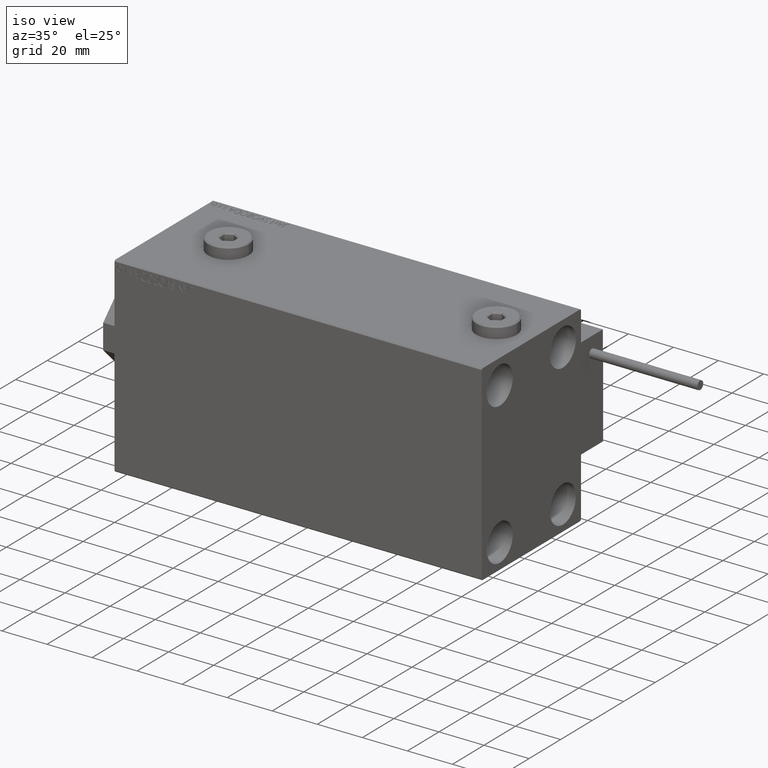
[diagram: clean part render]
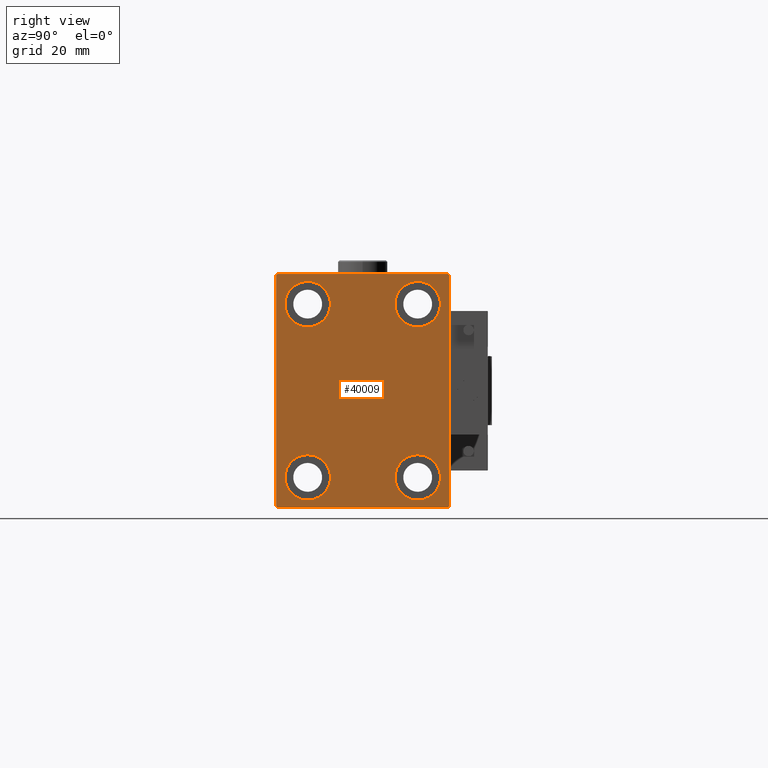
[diagram: tour spotlight — one face highlighted and labeled with its STEP entity id]
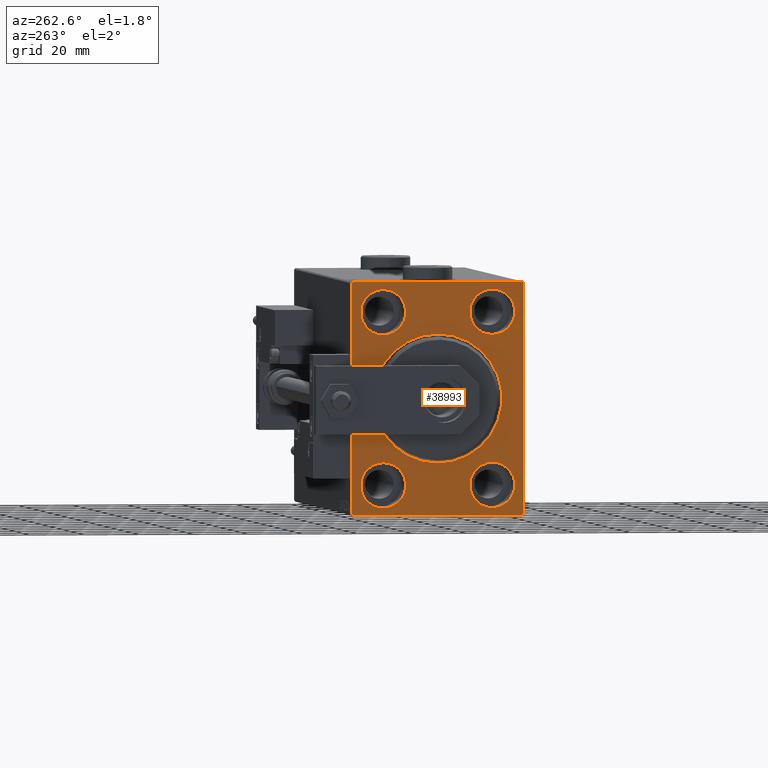
[diagram: tour spotlight — one face highlighted and labeled with its STEP entity id]
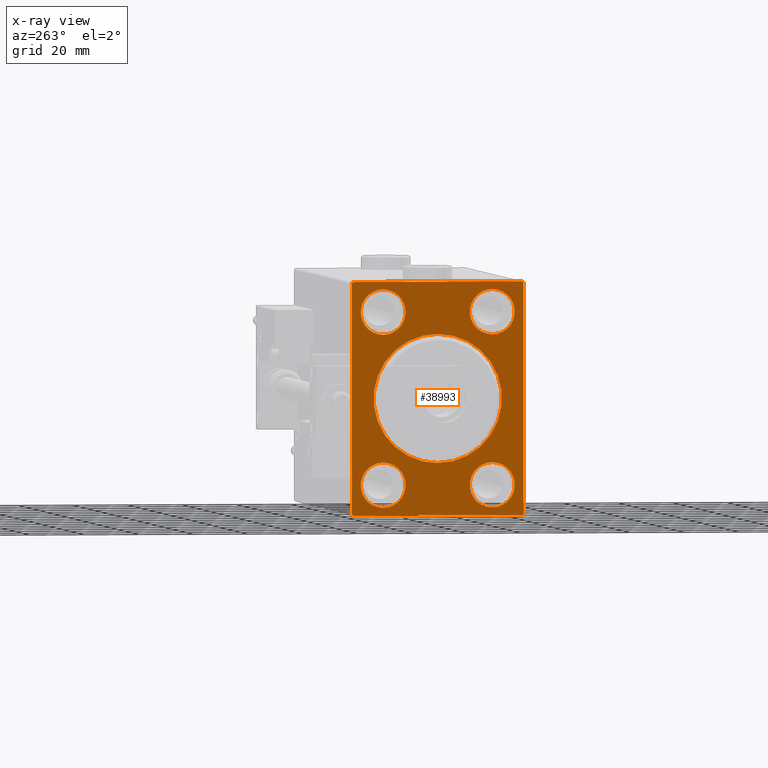
[diagram: x-ray of the same camera — body ghosted, this tour face saturated]
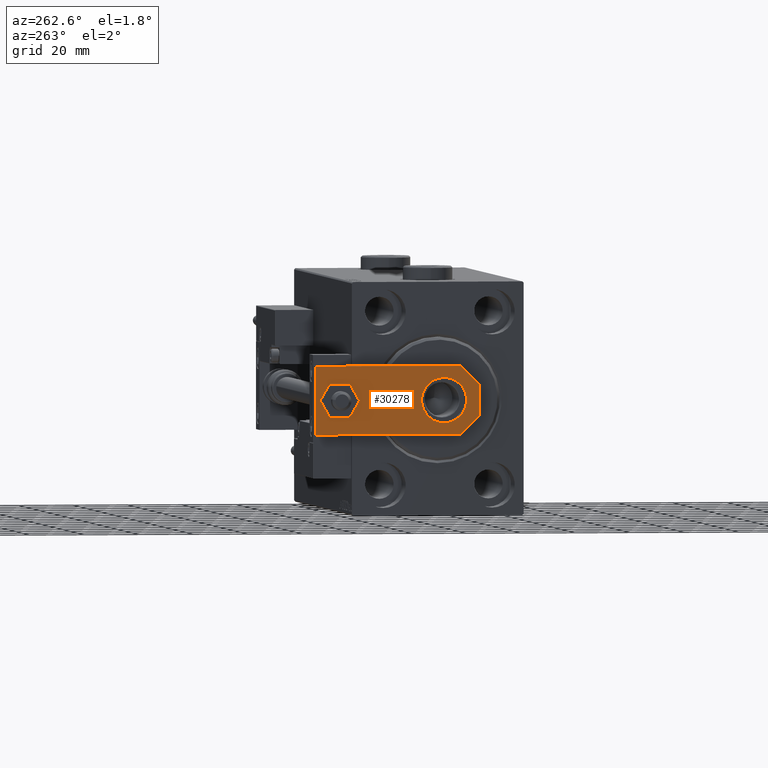
[diagram: tour spotlight — one face highlighted and labeled with its STEP entity id]
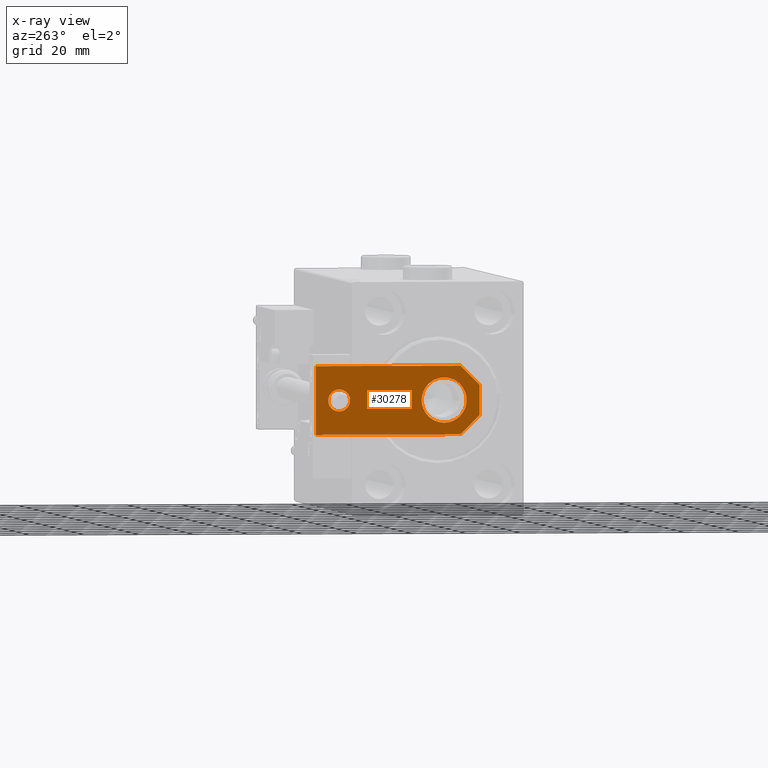
[diagram: x-ray of the same camera — body ghosted, this tour face saturated]
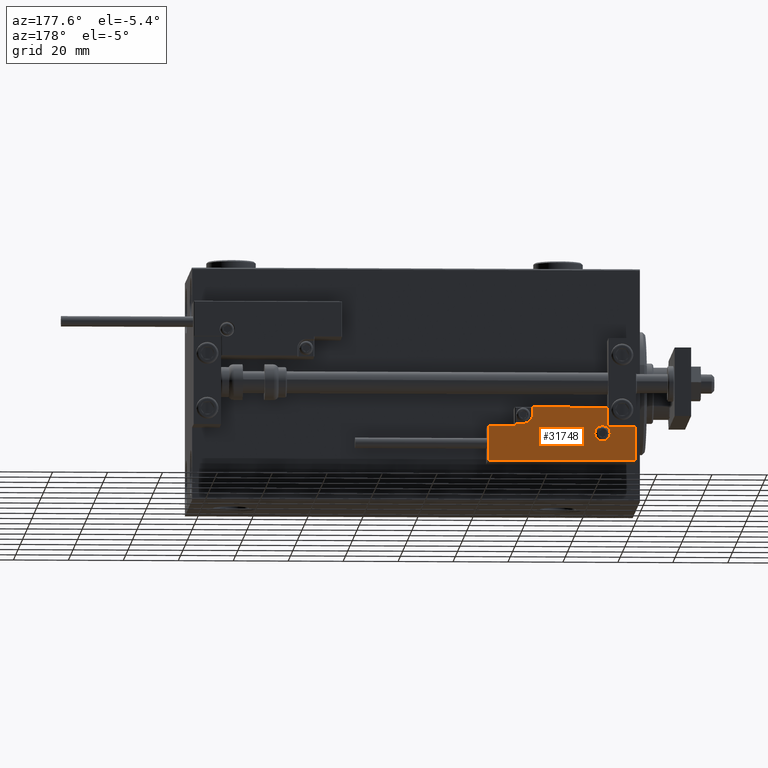
[diagram: tour spotlight — one face highlighted and labeled with its STEP entity id]
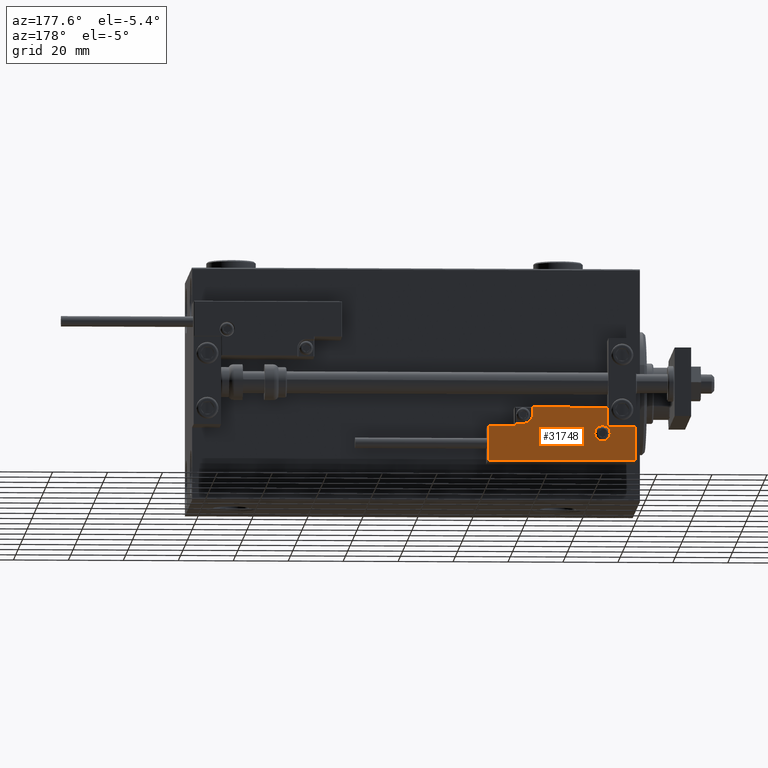
[diagram: tour spotlight — one face highlighted and labeled with its STEP entity id]
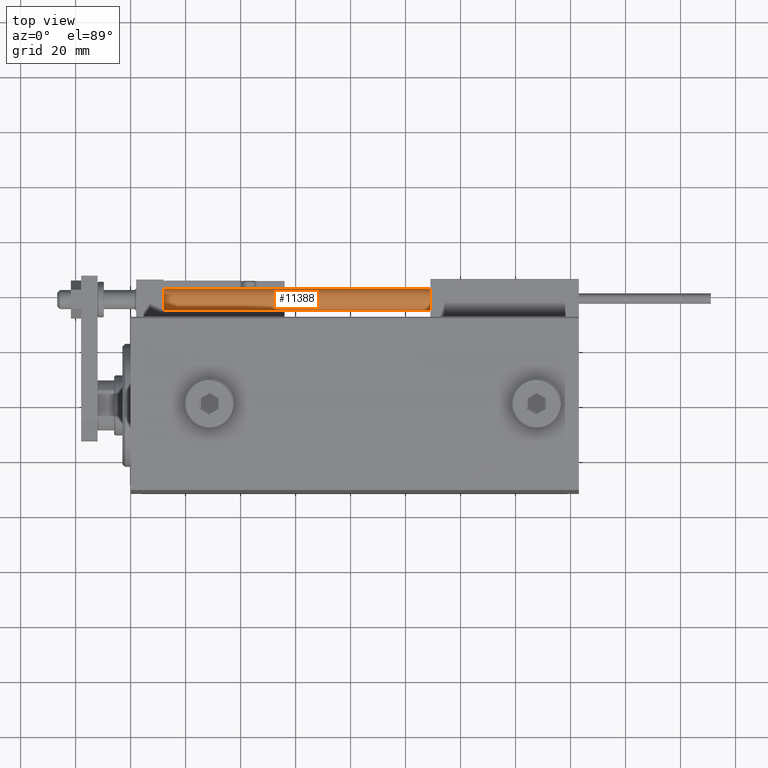
[diagram: tour spotlight — one face highlighted and labeled with its STEP entity id]
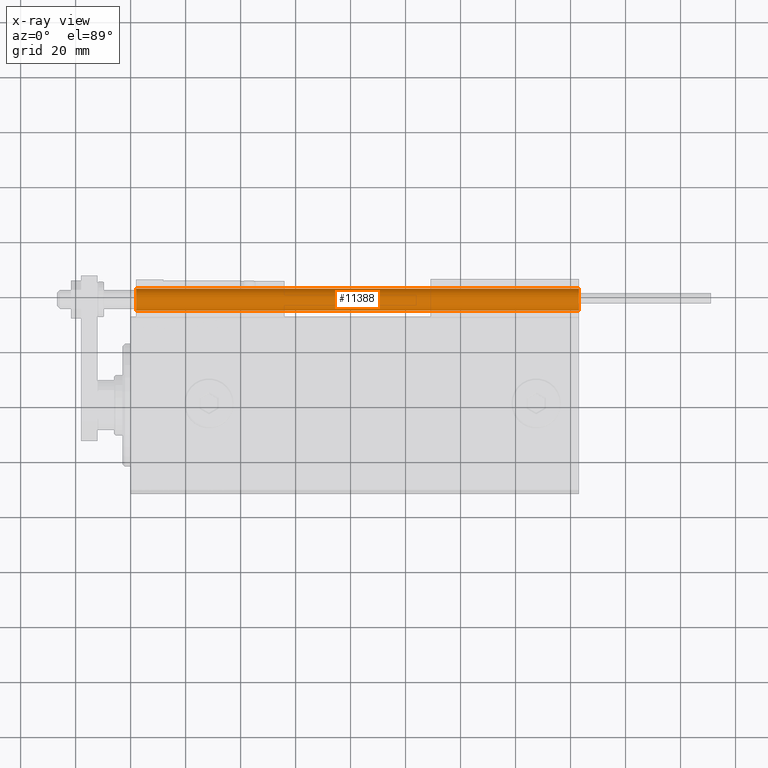
[diagram: x-ray of the same camera — body ghosted, this tour face saturated]
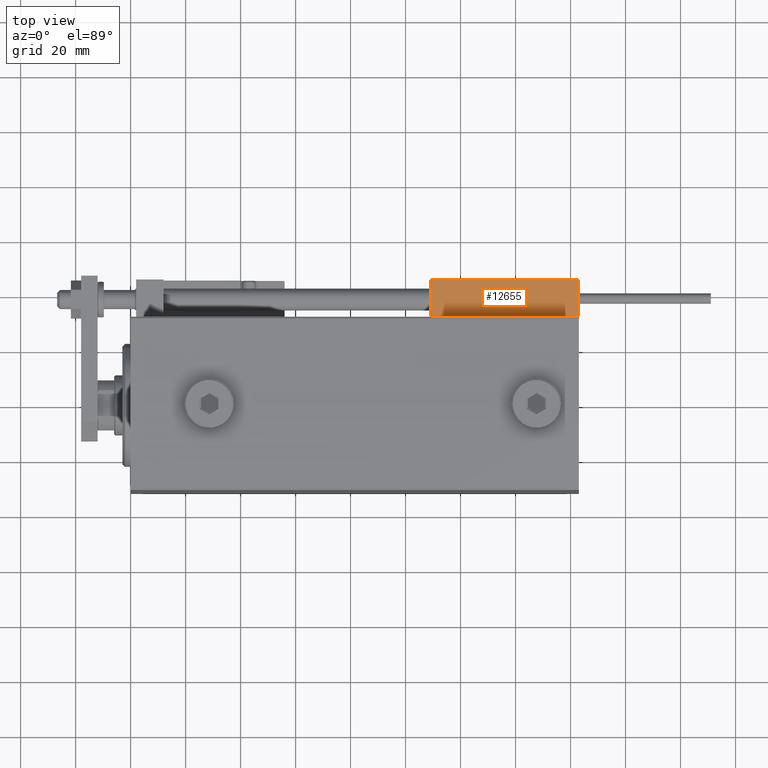
[diagram: tour spotlight — one face highlighted and labeled with its STEP entity id]
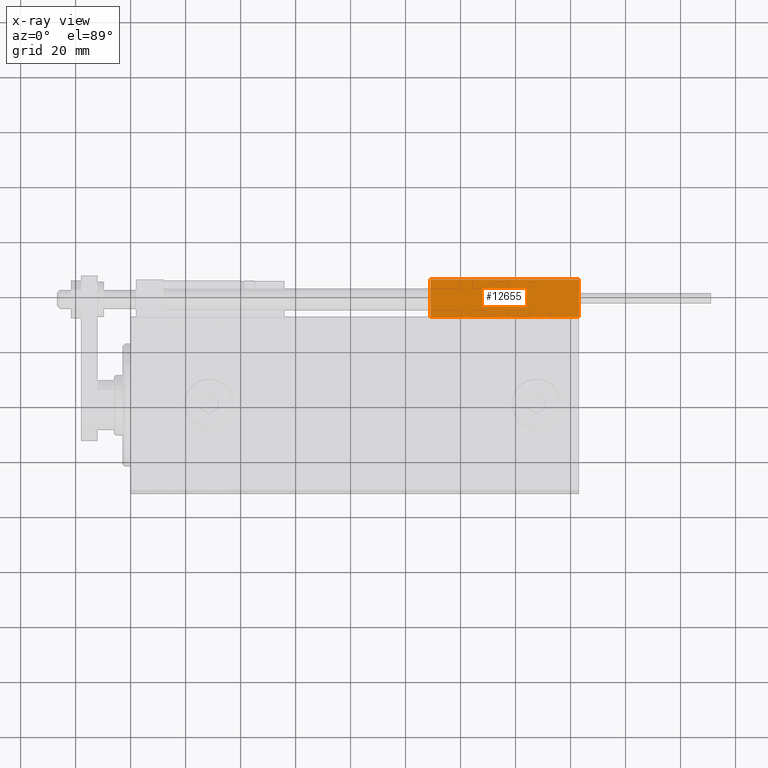
[diagram: x-ray of the same camera — body ghosted, this tour face saturated]
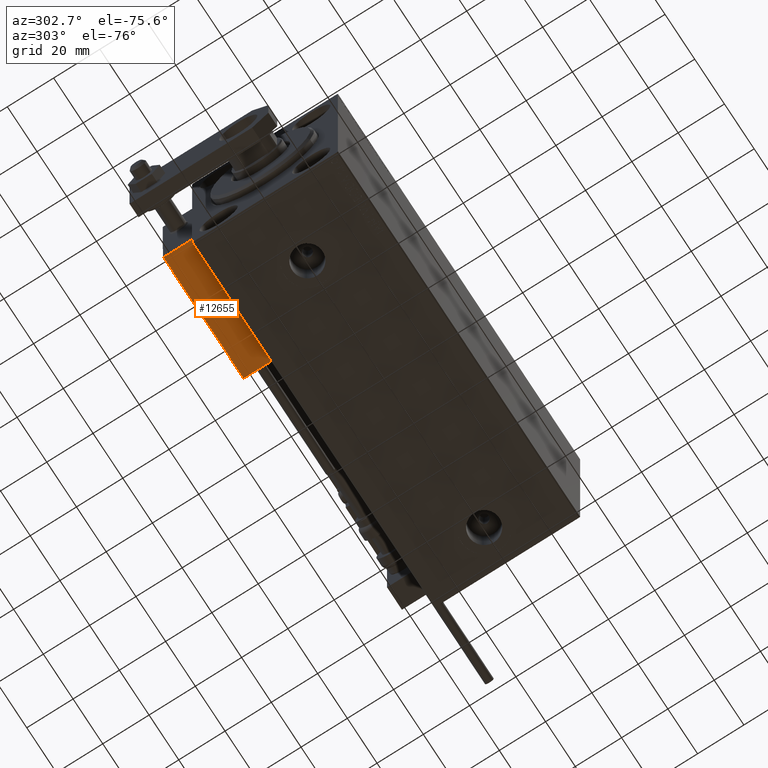
[diagram: tour spotlight — one face highlighted and labeled with its STEP entity id]
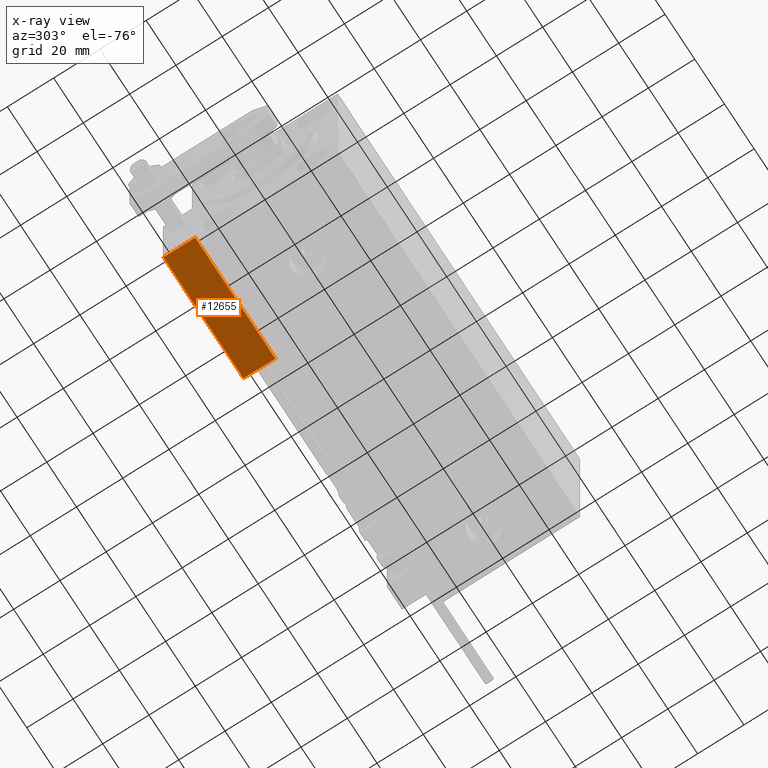
[diagram: x-ray of the same camera — body ghosted, this tour face saturated]
A machine part: a face-by-face anatomy tour. The part has 1336 B-rep faces; the first image is the clean iso view, then the 8 largest visible faces are spotlighted one at a time (largest first), each with its STEP entity span.

Face 1 — right view, entity #40009. In plain terms, the highlighted planar face has unit normal (1, 0, 0).
Definition (entity closure, byte-faithful):
#263 = VERTEX_POINT ( 'NONE', #26720 ) ;
#292 = DIRECTION ( 'NONE',  ( -1.000000000000000000, -0.000000000000000000, -0.000000000000000000 ) ) ;
#779 = CARTESIAN_POINT ( 'NONE',  ( 163.0000000000000000, 19.99999999999999645, -31.49999999999999289 ) ) ;
#1014 = EDGE_CURVE ( 'NONE', #15328, #13419, #8300, .T. ) ;
#1059 = CARTESIAN_POINT ( 'NONE',  ( 163.0000000000000000, -36.75000000000000711, -36.75000000000000711 ) ) ;
#1332 = LINE ( 'NONE', #1587, #37113 ) ;
#1587 = CARTESIAN_POINT ( 'NONE',  ( 163.0000000000000000, 31.50000000000001421, -42.50000000000000711 ) ) ;
#1717 = LINE ( 'NONE', #13448, #14893 ) ;
#1796 = ORIENTED_EDGE ( 'NONE', *, *, #11312, .T. ) ;
#2045 = CIRCLE ( 'NONE', #39526, 8.249999999999992895 ) ;
#2194 = CARTESIAN_POINT ( 'NONE',  ( 163.0000000000000000, 20.00000000000000355, 31.50000000000000000 ) ) ;
#2215 = CARTESIAN_POINT ( 'NONE',  ( 163.0000000000000000, -20.00000000000000355, -31.49999999999999289 ) ) ;
#2232 = EDGE_CURVE ( 'NONE', #5654, #263, #9520, .T. ) ;
#2235 = EDGE_CURVE ( 'NONE', #3152, #16198, #1717, .T. ) ;
#2898 = DIRECTION ( 'NONE',  ( 0.000000000000000000, -1.000000000000000000, -2.202823461557850341E-16 ) ) ;
#3152 = VERTEX_POINT ( 'NONE', #38273 ) ;
#4821 = DIRECTION ( 'NONE',  ( 0.000000000000000000, 0.000000000000000000, -1.000000000000000000 ) ) ;
#4995 = VERTEX_POINT ( 'NONE', #8577 ) ;
#5096 = DIRECTION ( 'NONE',  ( -0.000000000000000000, -0.7071067811865474617, 0.7071067811865474617 ) ) ;
#5319 = CARTESIAN_POINT ( 'NONE',  ( 163.0000000000000000, -20.00000000000000355, -31.49999999999999289 ) ) ;
#5654 = VERTEX_POINT ( 'NONE', #18781 ) ;
#6112 = DIRECTION ( 'NONE',  ( -1.000000000000000000, -0.000000000000000000, -0.000000000000000000 ) ) ;
#6521 = FACE_BOUND ( 'NONE', #24930, .T. ) ;
#6953 = CIRCLE ( 'NONE', #24469, 8.249999999999992895 ) ;
#7036 = PLANE ( 'NONE',  #32615 ) ;
#7312 = ORIENTED_EDGE ( 'NONE', *, *, #7416, .T. ) ;
#7319 = CARTESIAN_POINT ( 'NONE',  ( 163.0000000000000000, 31.50000000000000000, 42.50000000000000711 ) ) ;
#7416 = EDGE_CURVE ( 'NONE', #32181, #17707, #8458, .T. ) ;
#7428 = DIRECTION ( 'NONE',  ( -1.000000000000000000, -0.000000000000000000, -0.000000000000000000 ) ) ;
#7823 = ORIENTED_EDGE ( 'NONE', *, *, #14982, .T. ) ;
#8300 = CIRCLE ( 'NONE', #46616, 8.250000000000000000 ) ;
#8458 = CIRCLE ( 'NONE', #37612, 8.249999999999992895 ) ;
#8577 = CARTESIAN_POINT ( 'NONE',  ( 163.0000000000000000, 31.50000000000001421, -42.00000000000000711 ) ) ;
#9135 = DIRECTION ( 'NONE',  ( 0.000000000000000000, -1.632680918566406300E-16, 1.000000000000000000 ) ) ;
#9520 = LINE ( 'NONE', #45517, #39862 ) ;
#10166 = CARTESIAN_POINT ( 'NONE',  ( 163.0000000000000000, 31.00000000000001421, -42.50000000000000711 ) ) ;
#10265 = AXIS2_PLACEMENT_3D ( 'NONE', #2215, #6112, #38971 ) ;
#10280 = CIRCLE ( 'NONE', #20304, 8.249999999999992895 ) ;
#11312 = EDGE_CURVE ( 'NONE', #37328, #46549, #10280, .T. ) ;
#11842 = EDGE_CURVE ( 'NONE', #13419, #15328, #50299, .T. ) ;
#12083 = EDGE_LOOP ( 'NONE', ( #18175, #37012, #13584, #7823, #34039, #33770, #49940, #20712 ) ) ;
#13159 = DIRECTION ( 'NONE',  ( -1.000000000000000000, -0.000000000000000000, -0.000000000000000000 ) ) ;
#13419 = VERTEX_POINT ( 'NONE', #17826 ) ;
#13448 = CARTESIAN_POINT ( 'NONE',  ( 163.0000000000000000, -36.75000000000000000, 36.75000000000000000 ) ) ;
#13584 = ORIENTED_EDGE ( 'NONE', *, *, #15155, .T. ) ;
#14508 = CARTESIAN_POINT ( 'NONE',  ( 163.0000000000000000, -31.50000000000000000, -42.50000000000000711 ) ) ;
#14893 = VECTOR ( 'NONE', #25431, 1000.000000000000114 ) ;
#14982 = EDGE_CURVE ( 'NONE', #42667, #20988, #48760, .T. ) ;
#15155 = EDGE_CURVE ( 'NONE', #16198, #42667, #17077, .T. ) ;
#15328 = VERTEX_POINT ( 'NONE', #46785 ) ;
#15385 = FACE_BOUND ( 'NONE', #15777, .T. ) ;
#15491 = CARTESIAN_POINT ( 'NONE',  ( 163.0000000000000000, 20.00000000000000355, 31.50000000000000000 ) ) ;
#15637 = DIRECTION ( 'NONE',  ( 0.000000000000000000, 0.000000000000000000, 1.000000000000000000 ) ) ;
#15777 = EDGE_LOOP ( 'NONE', ( #32834, #7312 ) ) ;
#16174 = DIRECTION ( 'NONE',  ( 0.000000000000000000, 0.000000000000000000, 1.000000000000000000 ) ) ;
#16198 = VERTEX_POINT ( 'NONE', #48967 ) ;
#17077 = LINE ( 'NONE', #24395, #22947 ) ;
#17707 = VERTEX_POINT ( 'NONE', #24989 ) ;
#17762 = ORIENTED_EDGE ( 'NONE', *, *, #1014, .T. ) ;
#17826 = CARTESIAN_POINT ( 'NONE',  ( 163.0000000000000000, 19.99999999999999645, -39.74999999999999289 ) ) ;
#18175 = ORIENTED_EDGE ( 'NONE', *, *, #42386, .T. ) ;
#18228 = CARTESIAN_POINT ( 'NONE',  ( 163.0000000000000000, -31.50000000000000000, -42.00000000000000711 ) ) ;
#18781 = CARTESIAN_POINT ( 'NONE',  ( 163.0000000000000000, 31.50000000000000000, 42.00000000000000711 ) ) ;
#19687 = DIRECTION ( 'NONE',  ( 0.000000000000000000, 0.000000000000000000, 1.000000000000000000 ) ) ;
#20278 = CARTESIAN_POINT ( 'NONE',  ( 163.0000000000000000, 20.00000000000000355, 23.25000000000000355 ) ) ;
#20304 = AXIS2_PLACEMENT_3D ( 'NONE', #2194, #41831, #33735 ) ;
#20712 = ORIENTED_EDGE ( 'NONE', *, *, #2232, .T. ) ;
#20988 = VERTEX_POINT ( 'NONE', #36769 ) ;
#22947 = VECTOR ( 'NONE', #4821, 1000.000000000000000 ) ;
#23338 = EDGE_LOOP ( 'NONE', ( #28810, #17762 ) ) ;
#23826 = DIRECTION ( 'NONE',  ( 0.000000000000000000, 0.000000000000000000, 1.000000000000000000 ) ) ;
#24395 = CARTESIAN_POINT ( 'NONE',  ( 163.0000000000000000, -31.50000000000000000, 42.49999999999999289 ) ) ;
#24469 = AXIS2_PLACEMENT_3D ( 'NONE', #15491, #35814, #23826 ) ;
#24930 = EDGE_LOOP ( 'NONE', ( #28767, #1796 ) ) ;
#24989 = CARTESIAN_POINT ( 'NONE',  ( 163.0000000000000000, -19.99999999999999645, 23.25000000000000355 ) ) ;
#25429 = DIRECTION ( 'NONE',  ( 0.000000000000000000, 0.000000000000000000, 1.000000000000000000 ) ) ;
#25431 = DIRECTION ( 'NONE',  ( 0.000000000000000000, -0.7071067811865474617, -0.7071067811865474617 ) ) ;
#25564 = VERTEX_POINT ( 'NONE', #37399 ) ;
#25901 = DIRECTION ( 'NONE',  ( -0.000000000000000000, 0.7071067811865474617, 0.7071067811865474617 ) ) ;
#25919 = ORIENTED_EDGE ( 'NONE', *, *, #45934, .T. ) ;
#25988 = DIRECTION ( 'NONE',  ( 0.000000000000000000, 1.000000000000000000, 0.000000000000000000 ) ) ;
#26157 = LINE ( 'NONE', #38669, #41552 ) ;
#26378 = LINE ( 'NONE', #7319, #30181 ) ;
#26602 = DIRECTION ( 'NONE',  ( 1.000000000000000000, 0.000000000000000000, 0.000000000000000000 ) ) ;
#26720 = CARTESIAN_POINT ( 'NONE',  ( 163.0000000000000000, 31.00000000000000000, 42.50000000000000711 ) ) ;
#27121 = VECTOR ( 'NONE', #40938, 1000.000000000000114 ) ;
#27175 = EDGE_CURVE ( 'NONE', #35083, #4995, #26157, .T. ) ;
#27298 = CARTESIAN_POINT ( 'NONE',  ( 163.0000000000000000, 20.00000000000000355, 39.74999999999999289 ) ) ;
#28592 = CIRCLE ( 'NONE', #10265, 8.250000000000000000 ) ;
#28686 = CARTESIAN_POINT ( 'NONE',  ( 163.0000000000000000, 19.99999999999999645, -31.49999999999999289 ) ) ;
#28767 = ORIENTED_EDGE ( 'NONE', *, *, #44232, .T. ) ;
#28810 = ORIENTED_EDGE ( 'NONE', *, *, #11842, .T. ) ;
#30181 = VECTOR ( 'NONE', #2898, 1000.000000000000000 ) ;
#30363 = DIRECTION ( 'NONE',  ( -1.000000000000000000, -0.000000000000000000, -0.000000000000000000 ) ) ;
#31119 = AXIS2_PLACEMENT_3D ( 'NONE', #5319, #13159, #44458 ) ;
#32181 = VERTEX_POINT ( 'NONE', #48907 ) ;
#32615 = AXIS2_PLACEMENT_3D ( 'NONE', #46431, #26602, #42771 ) ;
#32834 = ORIENTED_EDGE ( 'NONE', *, *, #50027, .T. ) ;
#33735 = DIRECTION ( 'NONE',  ( 0.000000000000000000, 0.000000000000000000, 1.000000000000000000 ) ) ;
#33770 = ORIENTED_EDGE ( 'NONE', *, *, #27175, .T. ) ;
#34017 = CARTESIAN_POINT ( 'NONE',  ( 163.0000000000000000, -19.99999999999999645, 31.50000000000000000 ) ) ;
#34039 = ORIENTED_EDGE ( 'NONE', *, *, #42030, .T. ) ;
#35083 = VERTEX_POINT ( 'NONE', #10166 ) ;
#35385 = CARTESIAN_POINT ( 'NONE',  ( 163.0000000000000000, -20.00000000000000355, -39.74999999999999289 ) ) ;
#35814 = DIRECTION ( 'NONE',  ( -1.000000000000000000, -0.000000000000000000, -0.000000000000000000 ) ) ;
#36108 = CARTESIAN_POINT ( 'NONE',  ( 163.0000000000000000, -19.99999999999999645, 31.50000000000000000 ) ) ;
#36769 = CARTESIAN_POINT ( 'NONE',  ( 163.0000000000000000, -31.00000000000000000, -42.50000000000000711 ) ) ;
#37012 = ORIENTED_EDGE ( 'NONE', *, *, #2235, .T. ) ;
#37113 = VECTOR ( 'NONE', #9135, 1000.000000000000000 ) ;
#37328 = VERTEX_POINT ( 'NONE', #27298 ) ;
#37399 = CARTESIAN_POINT ( 'NONE',  ( 163.0000000000000000, -20.00000000000000355, -23.24999999999999289 ) ) ;
#37612 = AXIS2_PLACEMENT_3D ( 'NONE', #36108, #7428, #19687 ) ;
#38273 = CARTESIAN_POINT ( 'NONE',  ( 163.0000000000000000, -31.00000000000000000, 42.49999999999999289 ) ) ;
#38669 = CARTESIAN_POINT ( 'NONE',  ( 163.0000000000000000, 36.75000000000001421, -36.75000000000001421 ) ) ;
#38859 = FACE_BOUND ( 'NONE', #40048, .T. ) ;
#38971 = DIRECTION ( 'NONE',  ( 0.000000000000000000, 0.000000000000000000, 1.000000000000000000 ) ) ;
#39136 = VERTEX_POINT ( 'NONE', #35385 ) ;
#39526 = AXIS2_PLACEMENT_3D ( 'NONE', #34017, #30363, #25429 ) ;
#39862 = VECTOR ( 'NONE', #5096, 1000.000000000000114 ) ;
#40009 = ADVANCED_FACE ( 'NONE', ( #42258, #15385, #6521, #38859, #50327 ), #7036, .T. ) ;
#40048 = EDGE_LOOP ( 'NONE', ( #25919, #45684 ) ) ;
#40938 = DIRECTION ( 'NONE',  ( -0.000000000000000000, 0.7071067811865474617, -0.7071067811865474617 ) ) ;
#41552 = VECTOR ( 'NONE', #25901, 1000.000000000000114 ) ;
#41831 = DIRECTION ( 'NONE',  ( -1.000000000000000000, -0.000000000000000000, -0.000000000000000000 ) ) ;
#42030 = EDGE_CURVE ( 'NONE', #20988, #35083, #50229, .T. ) ;
#42258 = FACE_BOUND ( 'NONE', #23338, .T. ) ;
#42386 = EDGE_CURVE ( 'NONE', #263, #3152, #26378, .T. ) ;
#42667 = VERTEX_POINT ( 'NONE', #18228 ) ;
#42705 = VECTOR ( 'NONE', #25988, 1000.000000000000000 ) ;
#42771 = DIRECTION ( 'NONE',  ( 0.000000000000000000, 0.000000000000000000, -1.000000000000000000 ) ) ;
#44062 = DIRECTION ( 'NONE',  ( -1.000000000000000000, -0.000000000000000000, -0.000000000000000000 ) ) ;
#44093 = EDGE_CURVE ( 'NONE', #25564, #39136, #28592, .T. ) ;
#44232 = EDGE_CURVE ( 'NONE', #46549, #37328, #6953, .T. ) ;
#44458 = DIRECTION ( 'NONE',  ( 0.000000000000000000, 0.000000000000000000, 1.000000000000000000 ) ) ;
#45517 = CARTESIAN_POINT ( 'NONE',  ( 163.0000000000000000, 36.75000000000000711, 36.75000000000000711 ) ) ;
#45684 = ORIENTED_EDGE ( 'NONE', *, *, #44093, .T. ) ;
#45934 = EDGE_CURVE ( 'NONE', #39136, #25564, #46128, .T. ) ;
#46128 = CIRCLE ( 'NONE', #31119, 8.250000000000000000 ) ;
#46431 = CARTESIAN_POINT ( 'NONE',  ( 163.0000000000000000, 0.000000000000000000, 0.000000000000000000 ) ) ;
#46549 = VERTEX_POINT ( 'NONE', #20278 ) ;
#46616 = AXIS2_PLACEMENT_3D ( 'NONE', #779, #44062, #15637 ) ;
#46785 = CARTESIAN_POINT ( 'NONE',  ( 163.0000000000000000, 19.99999999999999645, -23.24999999999999289 ) ) ;
#48760 = LINE ( 'NONE', #1059, #27121 ) ;
#48907 = CARTESIAN_POINT ( 'NONE',  ( 163.0000000000000000, -19.99999999999999645, 39.74999999999999289 ) ) ;
#48967 = CARTESIAN_POINT ( 'NONE',  ( 163.0000000000000000, -31.50000000000000000, 41.99999999999999289 ) ) ;
#49139 = EDGE_CURVE ( 'NONE', #4995, #5654, #1332, .T. ) ;
#49491 = AXIS2_PLACEMENT_3D ( 'NONE', #28686, #292, #16174 ) ;
#49940 = ORIENTED_EDGE ( 'NONE', *, *, #49139, .T. ) ;
#50027 = EDGE_CURVE ( 'NONE', #17707, #32181, #2045, .T. ) ;
#50229 = LINE ( 'NONE', #14508, #42705 ) ;
#50299 = CIRCLE ( 'NONE', #49491, 8.250000000000000000 ) ;
#50327 = FACE_OUTER_BOUND ( 'NONE', #12083, .T. ) ;

Face 2 — auxiliary view, entity #38993. An x-ray twin of the same camera follows (body ghosted, this face saturated) — the face is partly hidden behind the body. In plain terms, the highlighted planar face has unit normal (1, 0, 0).
Definition (entity closure, byte-faithful):
#25 = VERTEX_POINT ( 'NONE', #35378 ) ;
#324 = DIRECTION ( 'NONE',  ( -1.000000000000000000, 0.000000000000000000, 0.000000000000000000 ) ) ;
#363 = EDGE_CURVE ( 'NONE', #28068, #32704, #3247, .T. ) ;
#682 = ORIENTED_EDGE ( 'NONE', *, *, #39820, .F. ) ;
#964 = CARTESIAN_POINT ( 'NONE',  ( 0.000000000000000000, 20.00000000000000355, 31.50000000000000000 ) ) ;
#1220 = DIRECTION ( 'NONE',  ( -1.000000000000000000, 0.000000000000000000, 0.000000000000000000 ) ) ;
#1370 = VERTEX_POINT ( 'NONE', #21474 ) ;
#1401 = AXIS2_PLACEMENT_3D ( 'NONE', #35454, #23719, #39114 ) ;
#1592 = ORIENTED_EDGE ( 'NONE', *, *, #41259, .F. ) ;
#1718 = CARTESIAN_POINT ( 'NONE',  ( 0.000000000000000000, -19.99999999999999645, 23.25000000000000355 ) ) ;
#1728 = AXIS2_PLACEMENT_3D ( 'NONE', #17047, #29037, #40260 ) ;
#1770 = AXIS2_PLACEMENT_3D ( 'NONE', #9083, #24996, #45585 ) ;
#2278 = ORIENTED_EDGE ( 'NONE', *, *, #48072, .F. ) ;
#2665 = FACE_BOUND ( 'NONE', #46603, .T. ) ;
#3247 = LINE ( 'NONE', #18900, #31599 ) ;
#3607 = EDGE_LOOP ( 'NONE', ( #14454, #41748 ) ) ;
#3928 = EDGE_CURVE ( 'NONE', #46185, #34619, #10116, .T. ) ;
#4283 = CIRCLE ( 'NONE', #10953, 8.249999999999992895 ) ;
#5675 = CARTESIAN_POINT ( 'NONE',  ( 0.000000000000000000, 31.50000000000000000, 42.00000000000000711 ) ) ;
#5946 = CARTESIAN_POINT ( 'NONE',  ( 0.000000000000000000, 31.50000000000001421, -42.00000000000000711 ) ) ;
#5960 = ORIENTED_EDGE ( 'NONE', *, *, #13459, .F. ) ;
#6101 = LINE ( 'NONE', #49905, #26325 ) ;
#6848 = CIRCLE ( 'NONE', #19324, 8.250000000000000000 ) ;
#6921 = VERTEX_POINT ( 'NONE', #47160 ) ;
#7229 = EDGE_CURVE ( 'NONE', #46959, #1370, #14497, .T. ) ;
#7338 = FACE_OUTER_BOUND ( 'NONE', #37694, .T. ) ;
#7639 = VECTOR ( 'NONE', #21859, 1000.000000000000114 ) ;
#7839 = CARTESIAN_POINT ( 'NONE',  ( 0.000000000000000000, 20.00000000000000355, 31.50000000000000000 ) ) ;
#8044 = EDGE_CURVE ( 'NONE', #28068, #1370, #26169, .T. ) ;
#8444 = VECTOR ( 'NONE', #41555, 1000.000000000000000 ) ;
#8600 = CIRCLE ( 'NONE', #32765, 23.49999999999998934 ) ;
#8816 = VERTEX_POINT ( 'NONE', #45439 ) ;
#9083 = CARTESIAN_POINT ( 'NONE',  ( 0.000000000000000000, -19.99999999999999645, 31.50000000000000000 ) ) ;
#9447 = DIRECTION ( 'NONE',  ( -1.000000000000000000, 0.000000000000000000, 0.000000000000000000 ) ) ;
#9568 = CARTESIAN_POINT ( 'NONE',  ( 0.000000000000000000, -19.99999999999999645, 39.74999999999999289 ) ) ;
#10116 = LINE ( 'NONE', #5946, #7639 ) ;
#10556 = EDGE_LOOP ( 'NONE', ( #46828, #30629 ) ) ;
#10953 = AXIS2_PLACEMENT_3D ( 'NONE', #32764, #17108, #33521 ) ;
#11003 = VECTOR ( 'NONE', #42400, 1000.000000000000114 ) ;
#11723 = LINE ( 'NONE', #23454, #24250 ) ;
#12018 = DIRECTION ( 'NONE',  ( 0.000000000000000000, 0.000000000000000000, 1.000000000000000000 ) ) ;
#12047 = DIRECTION ( 'NONE',  ( 0.000000000000000000, 0.000000000000000000, 1.000000000000000000 ) ) ;
#12071 = ORIENTED_EDGE ( 'NONE', *, *, #21656, .F. ) ;
#13459 = EDGE_CURVE ( 'NONE', #46959, #36690, #48878, .T. ) ;
#13473 = DIRECTION ( 'NONE',  ( 0.000000000000000000, 0.000000000000000000, 1.000000000000000000 ) ) ;
#13585 = VERTEX_POINT ( 'NONE', #43561 ) ;
#13890 = CARTESIAN_POINT ( 'NONE',  ( 0.000000000000000000, 19.99999999999999645, -31.49999999999999289 ) ) ;
#13917 = LINE ( 'NONE', #26413, #8444 ) ;
#13992 = ORIENTED_EDGE ( 'NONE', *, *, #7229, .T. ) ;
#14407 = FACE_BOUND ( 'NONE', #20212, .T. ) ;
#14454 = ORIENTED_EDGE ( 'NONE', *, *, #44897, .T. ) ;
#14497 = LINE ( 'NONE', #33794, #11003 ) ;
#15435 = FACE_BOUND ( 'NONE', #3607, .T. ) ;
#15829 = ORIENTED_EDGE ( 'NONE', *, *, #40506, .F. ) ;
#16601 = ORIENTED_EDGE ( 'NONE', *, *, #3928, .T. ) ;
#17047 = CARTESIAN_POINT ( 'NONE',  ( 0.000000000000000000, 0.000000000000000000, 0.000000000000000000 ) ) ;
#17084 = CIRCLE ( 'NONE', #47919, 8.250000000000000000 ) ;
#17108 = DIRECTION ( 'NONE',  ( -1.000000000000000000, 0.000000000000000000, 0.000000000000000000 ) ) ;
#17311 = DIRECTION ( 'NONE',  ( 0.000000000000000000, 0.000000000000000000, -1.000000000000000000 ) ) ;
#17339 = CARTESIAN_POINT ( 'NONE',  ( 0.000000000000000000, 20.00000000000000355, 39.74999999999999289 ) ) ;
#17667 = EDGE_LOOP ( 'NONE', ( #2278, #1592 ) ) ;
#17950 = CARTESIAN_POINT ( 'NONE',  ( 0.000000000000000000, 19.99999999999999645, -23.24999999999999289 ) ) ;
#18116 = VERTEX_POINT ( 'NONE', #1718 ) ;
#18900 = CARTESIAN_POINT ( 'NONE',  ( 0.000000000000000000, 31.00000000000000000, 42.50000000000000711 ) ) ;
#19220 = ORIENTED_EDGE ( 'NONE', *, *, #21368, .T. ) ;
#19324 = AXIS2_PLACEMENT_3D ( 'NONE', #36687, #24704, #13473 ) ;
#19344 = PLANE ( 'NONE',  #36749 ) ;
#20212 = EDGE_LOOP ( 'NONE', ( #48903, #35285 ) ) ;
#21082 = VERTEX_POINT ( 'NONE', #27086 ) ;
#21368 = EDGE_CURVE ( 'NONE', #34127, #36690, #6101, .T. ) ;
#21474 = CARTESIAN_POINT ( 'NONE',  ( 0.000000000000000000, -31.00000000000000000, 42.49999999999999289 ) ) ;
#21499 = CARTESIAN_POINT ( 'NONE',  ( 0.000000000000000000, -31.50000000000000000, 41.99999999999999289 ) ) ;
#21544 = ORIENTED_EDGE ( 'NONE', *, *, #363, .T. ) ;
#21656 = EDGE_CURVE ( 'NONE', #8816, #32773, #29711, .T. ) ;
#21859 = DIRECTION ( 'NONE',  ( 0.000000000000000000, -0.7071067811865474617, -0.7071067811865474617 ) ) ;
#21989 = CARTESIAN_POINT ( 'NONE',  ( 0.000000000000000000, -31.50000000000000000, 42.49999999999999289 ) ) ;
#22047 = EDGE_CURVE ( 'NONE', #6921, #36385, #38022, .T. ) ;
#22221 = FACE_BOUND ( 'NONE', #17667, .T. ) ;
#22997 = ORIENTED_EDGE ( 'NONE', *, *, #35177, .F. ) ;
#23240 = DIRECTION ( 'NONE',  ( -1.000000000000000000, 0.000000000000000000, 0.000000000000000000 ) ) ;
#23454 = CARTESIAN_POINT ( 'NONE',  ( 0.000000000000000000, 31.50000000000001421, -42.50000000000000711 ) ) ;
#23719 = DIRECTION ( 'NONE',  ( -1.000000000000000000, 0.000000000000000000, 0.000000000000000000 ) ) ;
#24208 = CIRCLE ( 'NONE', #1728, 23.49999999999998934 ) ;
#24250 = VECTOR ( 'NONE', #39366, 1000.000000000000000 ) ;
#24704 = DIRECTION ( 'NONE',  ( -1.000000000000000000, 0.000000000000000000, 0.000000000000000000 ) ) ;
#24996 = DIRECTION ( 'NONE',  ( -1.000000000000000000, 0.000000000000000000, 0.000000000000000000 ) ) ;
#25123 = CIRCLE ( 'NONE', #37598, 8.250000000000000000 ) ;
#26169 = LINE ( 'NONE', #42079, #39336 ) ;
#26325 = VECTOR ( 'NONE', #46008, 1000.000000000000114 ) ;
#26413 = CARTESIAN_POINT ( 'NONE',  ( 0.000000000000000000, -31.50000000000000000, -42.50000000000000711 ) ) ;
#26427 = DIRECTION ( 'NONE',  ( 0.000000000000000000, -1.000000000000000000, -2.202823461557850341E-16 ) ) ;
#26791 = VERTEX_POINT ( 'NONE', #17950 ) ;
#27045 = VECTOR ( 'NONE', #17311, 1000.000000000000000 ) ;
#27086 = CARTESIAN_POINT ( 'NONE',  ( 0.000000000000000000, 0.000000000000000000, 23.49999999999998934 ) ) ;
#27173 = FACE_BOUND ( 'NONE', #10556, .T. ) ;
#28068 = VERTEX_POINT ( 'NONE', #39574 ) ;
#28333 = DIRECTION ( 'NONE',  ( 0.000000000000000000, 0.000000000000000000, 1.000000000000000000 ) ) ;
#29037 = DIRECTION ( 'NONE',  ( 1.000000000000000000, 0.000000000000000000, 0.000000000000000000 ) ) ;
#29711 = CIRCLE ( 'NONE', #1401, 8.250000000000000000 ) ;
#30629 = ORIENTED_EDGE ( 'NONE', *, *, #22047, .F. ) ;
#31599 = VECTOR ( 'NONE', #34798, 1000.000000000000114 ) ;
#32117 = CARTESIAN_POINT ( 'NONE',  ( 0.000000000000000000, -20.00000000000000355, -31.49999999999999289 ) ) ;
#32704 = VERTEX_POINT ( 'NONE', #5675 ) ;
#32764 = CARTESIAN_POINT ( 'NONE',  ( 0.000000000000000000, -19.99999999999999645, 31.50000000000000000 ) ) ;
#32765 = AXIS2_PLACEMENT_3D ( 'NONE', #33626, #38318, #34394 ) ;
#32773 = VERTEX_POINT ( 'NONE', #35373 ) ;
#33521 = DIRECTION ( 'NONE',  ( 0.000000000000000000, 0.000000000000000000, 1.000000000000000000 ) ) ;
#33626 = CARTESIAN_POINT ( 'NONE',  ( 0.000000000000000000, 0.000000000000000000, 0.000000000000000000 ) ) ;
#33794 = CARTESIAN_POINT ( 'NONE',  ( 0.000000000000000000, -31.50000000000000000, 41.99999999999999289 ) ) ;
#34127 = VERTEX_POINT ( 'NONE', #43852 ) ;
#34394 = DIRECTION ( 'NONE',  ( 0.000000000000000000, 0.000000000000000000, -1.000000000000000000 ) ) ;
#34619 = VERTEX_POINT ( 'NONE', #38784 ) ;
#34798 = DIRECTION ( 'NONE',  ( -0.000000000000000000, 0.7071067811865474617, -0.7071067811865474617 ) ) ;
#35177 = EDGE_CURVE ( 'NONE', #46185, #32704, #11723, .T. ) ;
#35245 = CARTESIAN_POINT ( 'NONE',  ( 0.000000000000000000, 0.000000000000000000, 0.000000000000000000 ) ) ;
#35274 = EDGE_CURVE ( 'NONE', #18116, #42902, #35887, .T. ) ;
#35285 = ORIENTED_EDGE ( 'NONE', *, *, #35274, .F. ) ;
#35373 = CARTESIAN_POINT ( 'NONE',  ( 0.000000000000000000, -20.00000000000000355, -39.74999999999999289 ) ) ;
#35378 = CARTESIAN_POINT ( 'NONE',  ( 0.000000000000000000, 19.99999999999999645, -39.74999999999999289 ) ) ;
#35454 = CARTESIAN_POINT ( 'NONE',  ( 0.000000000000000000, -20.00000000000000355, -31.49999999999999289 ) ) ;
#35505 = EDGE_CURVE ( 'NONE', #42902, #18116, #4283, .T. ) ;
#35887 = CIRCLE ( 'NONE', #1770, 8.249999999999992895 ) ;
#36385 = VERTEX_POINT ( 'NONE', #17339 ) ;
#36687 = CARTESIAN_POINT ( 'NONE',  ( 0.000000000000000000, 19.99999999999999645, -31.49999999999999289 ) ) ;
#36690 = VERTEX_POINT ( 'NONE', #44172 ) ;
#36749 = AXIS2_PLACEMENT_3D ( 'NONE', #35245, #51159, #45964 ) ;
#37598 = AXIS2_PLACEMENT_3D ( 'NONE', #32117, #324, #12047 ) ;
#37694 = EDGE_LOOP ( 'NONE', ( #5960, #13992, #39675, #21544, #22997, #16601, #15829, #19220 ) ) ;
#38022 = CIRCLE ( 'NONE', #41367, 8.249999999999992895 ) ;
#38318 = DIRECTION ( 'NONE',  ( 1.000000000000000000, 0.000000000000000000, 0.000000000000000000 ) ) ;
#38571 = EDGE_CURVE ( 'NONE', #13585, #21082, #24208, .T. ) ;
#38784 = CARTESIAN_POINT ( 'NONE',  ( 0.000000000000000000, 31.00000000000001421, -42.50000000000000711 ) ) ;
#38993 = ADVANCED_FACE ( 'NONE', ( #15435, #22221, #14407, #27173, #2665, #7338 ), #19344, .F. ) ;
#39114 = DIRECTION ( 'NONE',  ( 0.000000000000000000, 0.000000000000000000, 1.000000000000000000 ) ) ;
#39336 = VECTOR ( 'NONE', #26427, 1000.000000000000000 ) ;
#39366 = DIRECTION ( 'NONE',  ( 0.000000000000000000, -1.632680918566406300E-16, 1.000000000000000000 ) ) ;
#39574 = CARTESIAN_POINT ( 'NONE',  ( 0.000000000000000000, 31.00000000000000000, 42.50000000000000711 ) ) ;
#39675 = ORIENTED_EDGE ( 'NONE', *, *, #8044, .F. ) ;
#39704 = CARTESIAN_POINT ( 'NONE',  ( 0.000000000000000000, 31.50000000000001421, -42.00000000000000711 ) ) ;
#39820 = EDGE_CURVE ( 'NONE', #32773, #8816, #25123, .T. ) ;
#40260 = DIRECTION ( 'NONE',  ( 0.000000000000000000, 0.000000000000000000, -1.000000000000000000 ) ) ;
#40506 = EDGE_CURVE ( 'NONE', #34127, #34619, #13917, .T. ) ;
#41259 = EDGE_CURVE ( 'NONE', #25, #26791, #6848, .T. ) ;
#41367 = AXIS2_PLACEMENT_3D ( 'NONE', #964, #1220, #28333 ) ;
#41555 = DIRECTION ( 'NONE',  ( 0.000000000000000000, 1.000000000000000000, 0.000000000000000000 ) ) ;
#41748 = ORIENTED_EDGE ( 'NONE', *, *, #38571, .T. ) ;
#42079 = CARTESIAN_POINT ( 'NONE',  ( 0.000000000000000000, 31.50000000000000000, 42.50000000000000711 ) ) ;
#42400 = DIRECTION ( 'NONE',  ( -0.000000000000000000, 0.7071067811865474617, 0.7071067811865474617 ) ) ;
#42779 = AXIS2_PLACEMENT_3D ( 'NONE', #7839, #23240, #12018 ) ;
#42902 = VERTEX_POINT ( 'NONE', #9568 ) ;
#43561 = CARTESIAN_POINT ( 'NONE',  ( 0.000000000000000000, 2.877919977996279137E-15, -23.49999999999998934 ) ) ;
#43852 = CARTESIAN_POINT ( 'NONE',  ( 0.000000000000000000, -31.00000000000000000, -42.50000000000000711 ) ) ;
#44172 = CARTESIAN_POINT ( 'NONE',  ( 0.000000000000000000, -31.50000000000000000, -42.00000000000000711 ) ) ;
#44693 = EDGE_CURVE ( 'NONE', #36385, #6921, #49435, .T. ) ;
#44897 = EDGE_CURVE ( 'NONE', #21082, #13585, #8600, .T. ) ;
#45439 = CARTESIAN_POINT ( 'NONE',  ( 0.000000000000000000, -20.00000000000000355, -23.24999999999999289 ) ) ;
#45585 = DIRECTION ( 'NONE',  ( 0.000000000000000000, 0.000000000000000000, 1.000000000000000000 ) ) ;
#45964 = DIRECTION ( 'NONE',  ( 0.000000000000000000, 0.000000000000000000, -1.000000000000000000 ) ) ;
#46008 = DIRECTION ( 'NONE',  ( -0.000000000000000000, -0.7071067811865474617, 0.7071067811865474617 ) ) ;
#46185 = VERTEX_POINT ( 'NONE', #39704 ) ;
#46603 = EDGE_LOOP ( 'NONE', ( #12071, #682 ) ) ;
#46828 = ORIENTED_EDGE ( 'NONE', *, *, #44693, .F. ) ;
#46959 = VERTEX_POINT ( 'NONE', #21499 ) ;
#47160 = CARTESIAN_POINT ( 'NONE',  ( 0.000000000000000000, 20.00000000000000355, 23.25000000000000355 ) ) ;
#47919 = AXIS2_PLACEMENT_3D ( 'NONE', #13890, #9447, #48586 ) ;
#48072 = EDGE_CURVE ( 'NONE', #26791, #25, #17084, .T. ) ;
#48586 = DIRECTION ( 'NONE',  ( 0.000000000000000000, 0.000000000000000000, 1.000000000000000000 ) ) ;
#48878 = LINE ( 'NONE', #21989, #27045 ) ;
#48903 = ORIENTED_EDGE ( 'NONE', *, *, #35505, .F. ) ;
#49435 = CIRCLE ( 'NONE', #42779, 8.249999999999992895 ) ;
#49905 = CARTESIAN_POINT ( 'NONE',  ( 0.000000000000000000, -31.00000000000000000, -42.50000000000000711 ) ) ;
#51159 = DIRECTION ( 'NONE',  ( 1.000000000000000000, 0.000000000000000000, 0.000000000000000000 ) ) ;

Face 3 — auxiliary view, entity #30278. An x-ray twin of the same camera follows (body ghosted, this face saturated) — the face is partly hidden behind the body. In plain terms, the highlighted planar face has unit normal (-1, 0, 0).
Definition (entity closure, byte-faithful):
#598 = DIRECTION ( 'NONE',  ( 1.000000000000000000, 0.000000000000000000, 0.000000000000000000 ) ) ;
#688 = LINE ( 'NONE', #39789, #38691 ) ;
#2722 = CARTESIAN_POINT ( 'NONE',  ( -5.500000000000010658, 4.814824860968089633E-32, 6.000000000000000000 ) ) ;
#3417 = PLANE ( 'NONE',  #41791 ) ;
#3646 = CARTESIAN_POINT ( 'NONE',  ( -1.432611055310774642E-16, 51.50000000000000000, 6.000000000000000000 ) ) ;
#3655 = AXIS2_PLACEMENT_3D ( 'NONE', #35873, #48650, #33000 ) ;
#4581 = DIRECTION ( 'NONE',  ( -1.000000000000000000, 0.000000000000000000, 0.000000000000000000 ) ) ;
#8039 = CARTESIAN_POINT ( 'NONE',  ( -9.629649721936179265E-32, 12.99999999999999822, 6.000000000000000000 ) ) ;
#8411 = CARTESIAN_POINT ( 'NONE',  ( -1.432611055310774642E-16, 51.50000000000000000, 6.000000000000000000 ) ) ;
#8473 = VERTEX_POINT ( 'NONE', #17653 ) ;
#9143 = ORIENTED_EDGE ( 'NONE', *, *, #25774, .F. ) ;
#9526 = EDGE_LOOP ( 'NONE', ( #11513, #30004 ) ) ;
#10402 = VERTEX_POINT ( 'NONE', #24959 ) ;
#11500 = FACE_OUTER_BOUND ( 'NONE', #37134, .T. ) ;
#11513 = ORIENTED_EDGE ( 'NONE', *, *, #45357, .F. ) ;
#11636 = CARTESIAN_POINT ( 'NONE',  ( 4.000000000000000888, 51.50000000000000000, 6.000000000000000000 ) ) ;
#12839 = CARTESIAN_POINT ( 'NONE',  ( -12.50000000000000355, 4.814824860968089633E-32, 6.000000000000000000 ) ) ;
#13076 = EDGE_CURVE ( 'NONE', #49356, #18913, #688, .T. ) ;
#13952 = EDGE_CURVE ( 'NONE', #8473, #20855, #31241, .T. ) ;
#14083 = CARTESIAN_POINT ( 'NONE',  ( 12.50000000000000355, 60.00000000000000000, 6.000000000000000000 ) ) ;
#15232 = VECTOR ( 'NONE', #32677, 1000.000000000000000 ) ;
#15380 = DIRECTION ( 'NONE',  ( 1.000000000000000000, 0.000000000000000000, 0.000000000000000000 ) ) ;
#16451 = DIRECTION ( 'NONE',  ( -8.673617379884035472E-17, -1.000000000000000000, 0.000000000000000000 ) ) ;
#17309 = AXIS2_PLACEMENT_3D ( 'NONE', #8411, #51190, #39451 ) ;
#17653 = CARTESIAN_POINT ( 'NONE',  ( 5.499999999999976907, 4.814824860968089633E-32, 6.000000000000000000 ) ) ;
#18055 = CARTESIAN_POINT ( 'NONE',  ( 12.50000000000000355, 4.814824860968089633E-32, 6.000000000000000000 ) ) ;
#18483 = CARTESIAN_POINT ( 'NONE',  ( -12.50000000000000355, 7.000000000000013323, 6.000000000000000000 ) ) ;
#18543 = FACE_BOUND ( 'NONE', #9526, .T. ) ;
#18913 = VERTEX_POINT ( 'NONE', #44583 ) ;
#19807 = VECTOR ( 'NONE', #598, 1000.000000000000000 ) ;
#20265 = ORIENTED_EDGE ( 'NONE', *, *, #13076, .T. ) ;
#20855 = VERTEX_POINT ( 'NONE', #43571 ) ;
#21624 = EDGE_CURVE ( 'NONE', #29633, #43043, #24738, .T. ) ;
#24727 = EDGE_CURVE ( 'NONE', #36477, #8473, #25079, .T. ) ;
#24738 = CIRCLE ( 'NONE', #46365, 4.000000000000000888 ) ;
#24959 = CARTESIAN_POINT ( 'NONE',  ( -8.250000000000000000, 12.99999999999999822, 6.000000000000000000 ) ) ;
#25025 = VECTOR ( 'NONE', #30038, 1000.000000000000000 ) ;
#25079 = LINE ( 'NONE', #12839, #19807 ) ;
#25356 = LINE ( 'NONE', #33187, #15232 ) ;
#25642 = ORIENTED_EDGE ( 'NONE', *, *, #21624, .F. ) ;
#25774 = EDGE_CURVE ( 'NONE', #43043, #29633, #33139, .T. ) ;
#26395 = LINE ( 'NONE', #18055, #25025 ) ;
#26841 = DIRECTION ( 'NONE',  ( 0.000000000000000000, 0.000000000000000000, 1.000000000000000000 ) ) ;
#28706 = CARTESIAN_POINT ( 'NONE',  ( -12.49999999999999822, 60.00000000000000000, 6.000000000000000000 ) ) ;
#29633 = VERTEX_POINT ( 'NONE', #50932 ) ;
#30004 = ORIENTED_EDGE ( 'NONE', *, *, #44997, .F. ) ;
#30038 = DIRECTION ( 'NONE',  ( 0.000000000000000000, 1.000000000000000000, 0.000000000000000000 ) ) ;
#30278 = ADVANCED_FACE ( 'NONE', ( #42800, #11500, #18543 ), #3417, .T. ) ;
#30377 = VECTOR ( 'NONE', #48952, 999.9999999999998863 ) ;
#31154 = CIRCLE ( 'NONE', #3655, 8.250000000000000000 ) ;
#31241 = LINE ( 'NONE', #47162, #30377 ) ;
#31817 = ORIENTED_EDGE ( 'NONE', *, *, #43507, .T. ) ;
#32677 = DIRECTION ( 'NONE',  ( 0.7071067811865465735, -0.7071067811865485719, 0.000000000000000000 ) ) ;
#33000 = DIRECTION ( 'NONE',  ( 1.000000000000000000, 0.000000000000000000, 0.000000000000000000 ) ) ;
#33139 = CIRCLE ( 'NONE', #17309, 4.000000000000000888 ) ;
#33187 = CARTESIAN_POINT ( 'NONE',  ( -2.750000000000013767, -2.750000000000005773, 6.000000000000000000 ) ) ;
#34445 = CARTESIAN_POINT ( 'NONE',  ( 0.000000000000000000, 0.000000000000000000, 6.000000000000000000 ) ) ;
#35482 = DIRECTION ( 'NONE',  ( -0.000000000000000000, 0.000000000000000000, 1.000000000000000000 ) ) ;
#35873 = CARTESIAN_POINT ( 'NONE',  ( -9.629649721936179265E-32, 12.99999999999999822, 6.000000000000000000 ) ) ;
#36351 = ORIENTED_EDGE ( 'NONE', *, *, #24727, .T. ) ;
#36477 = VERTEX_POINT ( 'NONE', #2722 ) ;
#36786 = EDGE_CURVE ( 'NONE', #20855, #49356, #26395, .T. ) ;
#37053 = ORIENTED_EDGE ( 'NONE', *, *, #36786, .T. ) ;
#37134 = EDGE_LOOP ( 'NONE', ( #49114, #31817, #36351, #41635, #37053, #20265 ) ) ;
#37295 = LINE ( 'NONE', #28706, #38670 ) ;
#37750 = CIRCLE ( 'NONE', #46089, 8.250000000000000000 ) ;
#38670 = VECTOR ( 'NONE', #16451, 1000.000000000000000 ) ;
#38691 = VECTOR ( 'NONE', #4581, 1000.000000000000000 ) ;
#39350 = DIRECTION ( 'NONE',  ( 1.000000000000000000, 0.000000000000000000, 0.000000000000000000 ) ) ;
#39451 = DIRECTION ( 'NONE',  ( 1.000000000000000000, 0.000000000000000000, 0.000000000000000000 ) ) ;
#39789 = CARTESIAN_POINT ( 'NONE',  ( 12.50000000000000355, 60.00000000000000000, 6.000000000000000000 ) ) ;
#41635 = ORIENTED_EDGE ( 'NONE', *, *, #13952, .T. ) ;
#41791 = AXIS2_PLACEMENT_3D ( 'NONE', #34445, #35482, #51388 ) ;
#42690 = VERTEX_POINT ( 'NONE', #18483 ) ;
#42800 = FACE_BOUND ( 'NONE', #44422, .T. ) ;
#43043 = VERTEX_POINT ( 'NONE', #11636 ) ;
#43507 = EDGE_CURVE ( 'NONE', #42690, #36477, #25356, .T. ) ;
#43571 = CARTESIAN_POINT ( 'NONE',  ( 12.50000000000000355, 7.000000000000006217, 6.000000000000000000 ) ) ;
#44422 = EDGE_LOOP ( 'NONE', ( #25642, #9143 ) ) ;
#44583 = CARTESIAN_POINT ( 'NONE',  ( -12.49999999999999822, 60.00000000000000000, 6.000000000000000000 ) ) ;
#44997 = EDGE_CURVE ( 'NONE', #45660, #10402, #37750, .T. ) ;
#45307 = CARTESIAN_POINT ( 'NONE',  ( 8.250000000000000000, 13.00000000000000000, 6.000000000000000000 ) ) ;
#45357 = EDGE_CURVE ( 'NONE', #10402, #45660, #31154, .T. ) ;
#45660 = VERTEX_POINT ( 'NONE', #45307 ) ;
#46089 = AXIS2_PLACEMENT_3D ( 'NONE', #8039, #26841, #39350 ) ;
#46365 = AXIS2_PLACEMENT_3D ( 'NONE', #3646, #51360, #15380 ) ;
#47162 = CARTESIAN_POINT ( 'NONE',  ( 2.749999999999980016, -2.749999999999988010, 6.000000000000000000 ) ) ;
#48650 = DIRECTION ( 'NONE',  ( 0.000000000000000000, 0.000000000000000000, 1.000000000000000000 ) ) ;
#48952 = DIRECTION ( 'NONE',  ( 0.7071067811865486830, 0.7071067811865464625, -0.000000000000000000 ) ) ;
#49114 = ORIENTED_EDGE ( 'NONE', *, *, #49128, .T. ) ;
#49128 = EDGE_CURVE ( 'NONE', #18913, #42690, #37295, .T. ) ;
#49356 = VERTEX_POINT ( 'NONE', #14083 ) ;
#50932 = CARTESIAN_POINT ( 'NONE',  ( -4.000000000000000888, 51.50000000000000000, 6.000000000000000000 ) ) ;
#51190 = DIRECTION ( 'NONE',  ( 0.000000000000000000, 0.000000000000000000, 1.000000000000000000 ) ) ;
#51360 = DIRECTION ( 'NONE',  ( 0.000000000000000000, 0.000000000000000000, 1.000000000000000000 ) ) ;
#51388 = DIRECTION ( 'NONE',  ( 1.000000000000000000, 0.000000000000000000, 0.000000000000000000 ) ) ;

Face 4 — auxiliary view, entity #31748. In plain terms, the highlighted planar face has unit normal (0, 1, -0).
Definition (entity closure, byte-faithful):
#943 = LINE ( 'NONE', #32743, #23691 ) ;
#1432 = EDGE_CURVE ( 'NONE', #15527, #26732, #3321, .T. ) ;
#2013 = DIRECTION ( 'NONE',  ( 1.000000000000000000, 0.000000000000000000, 0.000000000000000000 ) ) ;
#2489 = ORIENTED_EDGE ( 'NONE', *, *, #11353, .T. ) ;
#2702 = CARTESIAN_POINT ( 'NONE',  ( 11.00000000000000000, 0.3000000000000032085, 14.00000000000000000 ) ) ;
#3321 = CIRCLE ( 'NONE', #39018, 2.800000000000000266 ) ;
#3354 = DIRECTION ( 'NONE',  ( 0.000000000000000000, -1.000000000000000000, 0.000000000000000000 ) ) ;
#3499 = EDGE_CURVE ( 'NONE', #5565, #38157, #26410, .T. ) ;
#4279 = EDGE_CURVE ( 'NONE', #11425, #46015, #34557, .T. ) ;
#4679 = CARTESIAN_POINT ( 'NONE',  ( 26.70000000000006324, 7.300000000000007816, 14.00000000000000000 ) ) ;
#5409 = DIRECTION ( 'NONE',  ( -0.000000000000000000, 0.000000000000000000, 1.000000000000000000 ) ) ;
#5565 = VERTEX_POINT ( 'NONE', #11085 ) ;
#5837 = CARTESIAN_POINT ( 'NONE',  ( 16.69999999999999929, 6.300000000000003375, 14.00000000000000000 ) ) ;
#5965 = VECTOR ( 'NONE', #23794, 1000.000000000000000 ) ;
#6057 = ORIENTED_EDGE ( 'NONE', *, *, #12038, .T. ) ;
#6714 = EDGE_CURVE ( 'NONE', #43402, #14230, #7361, .T. ) ;
#7361 = LINE ( 'NONE', #39188, #5965 ) ;
#9815 = ORIENTED_EDGE ( 'NONE', *, *, #14464, .T. ) ;
#10115 = DIRECTION ( 'NONE',  ( -1.000000000000000000, 6.424901762877063495E-17, -0.000000000000000000 ) ) ;
#10156 = VECTOR ( 'NONE', #3354, 1000.000000000000000 ) ;
#10510 = CARTESIAN_POINT ( 'NONE',  ( 16.69999999999999929, 7.300000000000009592, 14.00000000000000000 ) ) ;
#11085 = CARTESIAN_POINT ( 'NONE',  ( 10.69999999999999929, 0.3000000000000032085, 14.00000000000000000 ) ) ;
#11147 = VECTOR ( 'NONE', #26174, 1000.000000000000000 ) ;
#11353 = EDGE_CURVE ( 'NONE', #32201, #5565, #49654, .T. ) ;
#11425 = VERTEX_POINT ( 'NONE', #5837 ) ;
#11554 = LINE ( 'NONE', #42338, #47080 ) ;
#12038 = EDGE_CURVE ( 'NONE', #27812, #21050, #34649, .T. ) ;
#12101 = EDGE_LOOP ( 'NONE', ( #32472, #40931 ) ) ;
#12499 = EDGE_CURVE ( 'NONE', #38097, #11425, #45695, .T. ) ;
#12661 = DIRECTION ( 'NONE',  ( 0.000000000000000000, 1.000000000000000000, -0.000000000000000000 ) ) ;
#12755 = CARTESIAN_POINT ( 'NONE',  ( 10.69999999999999929, 3.000000000000003109, 14.00000000000000000 ) ) ;
#12970 = ORIENTED_EDGE ( 'NONE', *, *, #12499, .T. ) ;
#13080 = EDGE_CURVE ( 'NONE', #26043, #43402, #943, .T. ) ;
#14230 = VERTEX_POINT ( 'NONE', #44966 ) ;
#14464 = EDGE_CURVE ( 'NONE', #46015, #27812, #11554, .T. ) ;
#14744 = DIRECTION ( 'NONE',  ( 9.912705577010318647E-16, 1.000000000000000000, 0.000000000000000000 ) ) ;
#15527 = VERTEX_POINT ( 'NONE', #34192 ) ;
#16062 = DIRECTION ( 'NONE',  ( -8.006416042969869188E-16, -1.000000000000000000, 0.000000000000000000 ) ) ;
#16196 = ORIENTED_EDGE ( 'NONE', *, *, #41834, .T. ) ;
#16888 = CARTESIAN_POINT ( 'NONE',  ( 13.99999999999999822, 3.000000000000002665, 14.00000000000000000 ) ) ;
#17177 = LINE ( 'NONE', #41428, #49040 ) ;
#19099 = DIRECTION ( 'NONE',  ( 1.000000000000000000, 0.000000000000000000, 0.000000000000000000 ) ) ;
#19259 = CARTESIAN_POINT ( 'NONE',  ( -26.69999999999993534, 19.70000000000002061, 14.00000000000000000 ) ) ;
#19391 = CARTESIAN_POINT ( 'NONE',  ( -26.69999999999994600, 7.300000000000005151, 14.00000000000000000 ) ) ;
#19450 = CARTESIAN_POINT ( 'NONE',  ( -14.79999999999994920, 9.800000000000004263, 14.00000000000000000 ) ) ;
#19523 = VECTOR ( 'NONE', #30284, 1000.000000000000000 ) ;
#21050 = VERTEX_POINT ( 'NONE', #25031 ) ;
#21072 = CIRCLE ( 'NONE', #36071, 2.800000000000000266 ) ;
#21826 = FACE_BOUND ( 'NONE', #12101, .T. ) ;
#22449 = AXIS2_PLACEMENT_3D ( 'NONE', #49476, #5409, #2013 ) ;
#22492 = CARTESIAN_POINT ( 'NONE',  ( 10.69999999999999929, 3.000000000000003109, 14.00000000000000000 ) ) ;
#22909 = CARTESIAN_POINT ( 'NONE',  ( -16.69999999999999218, 3.252606517456513302E-15, 14.00000000000000000 ) ) ;
#23399 = ORIENTED_EDGE ( 'NONE', *, *, #6714, .T. ) ;
#23691 = VECTOR ( 'NONE', #16062, 1000.000000000000000 ) ;
#23794 = DIRECTION ( 'NONE',  ( 1.000000000000000000, -1.734723475976815230E-16, 0.000000000000000000 ) ) ;
#25031 = CARTESIAN_POINT ( 'NONE',  ( 26.70000000000006324, 19.70000000000001705, 14.00000000000000000 ) ) ;
#26043 = VERTEX_POINT ( 'NONE', #19259 ) ;
#26174 = DIRECTION ( 'NONE',  ( 1.000000000000000000, -0.000000000000000000, 0.000000000000000000 ) ) ;
#26410 = LINE ( 'NONE', #22492, #33473 ) ;
#26563 = LINE ( 'NONE', #22909, #10156 ) ;
#26732 = VERTEX_POINT ( 'NONE', #40657 ) ;
#26868 = EDGE_CURVE ( 'NONE', #21050, #26043, #17177, .T. ) ;
#27640 = VECTOR ( 'NONE', #14744, 1000.000000000000000 ) ;
#27812 = VERTEX_POINT ( 'NONE', #4679 ) ;
#29394 = DIRECTION ( 'NONE',  ( 1.000000000000000000, 0.000000000000000000, 0.000000000000000000 ) ) ;
#29498 = VECTOR ( 'NONE', #12661, 1000.000000000000000 ) ;
#30284 = DIRECTION ( 'NONE',  ( 1.000000000000000000, 5.782411586589357639E-16, -0.000000000000000000 ) ) ;
#30802 = CARTESIAN_POINT ( 'NONE',  ( 17.00000000000000000, 6.300000000000003375, 14.00000000000000000 ) ) ;
#30875 = CARTESIAN_POINT ( 'NONE',  ( -16.69999999999999218, 0.3000000000000032085, 14.00000000000000000 ) ) ;
#31354 = CARTESIAN_POINT ( 'NONE',  ( -14.79999999999994920, 9.800000000000004263, 14.00000000000000000 ) ) ;
#31748 = ADVANCED_FACE ( 'NONE', ( #21826, #33816 ), #37741, .T. ) ;
#32201 = VERTEX_POINT ( 'NONE', #30875 ) ;
#32472 = ORIENTED_EDGE ( 'NONE', *, *, #1432, .T. ) ;
#32743 = CARTESIAN_POINT ( 'NONE',  ( -26.69999999999994600, 7.000000000000005329, 14.00000000000000000 ) ) ;
#33473 = VECTOR ( 'NONE', #38660, 1000.000000000000000 ) ;
#33816 = FACE_OUTER_BOUND ( 'NONE', #35583, .T. ) ;
#34192 = CARTESIAN_POINT ( 'NONE',  ( -11.99999999999994849, 9.800000000000004263, 14.00000000000000000 ) ) ;
#34557 = LINE ( 'NONE', #50467, #27640 ) ;
#34649 = LINE ( 'NONE', #44219, #29498 ) ;
#35583 = EDGE_LOOP ( 'NONE', ( #16196, #2489, #36249, #41203, #12970, #42957, #9815, #6057, #47153, #46476, #23399 ) ) ;
#36071 = AXIS2_PLACEMENT_3D ( 'NONE', #19450, #39782, #40034 ) ;
#36249 = ORIENTED_EDGE ( 'NONE', *, *, #3499, .T. ) ;
#37741 = PLANE ( 'NONE',  #22449 ) ;
#38097 = VERTEX_POINT ( 'NONE', #43277 ) ;
#38157 = VERTEX_POINT ( 'NONE', #12755 ) ;
#38660 = DIRECTION ( 'NONE',  ( -0.000000000000000000, 1.000000000000000000, -0.000000000000000000 ) ) ;
#39018 = AXIS2_PLACEMENT_3D ( 'NONE', #31354, #43095, #19099 ) ;
#39188 = CARTESIAN_POINT ( 'NONE',  ( -16.99999999999999289, 7.300000000000003375, 14.00000000000000000 ) ) ;
#39782 = DIRECTION ( 'NONE',  ( 0.000000000000000000, -0.000000000000000000, -1.000000000000000000 ) ) ;
#40034 = DIRECTION ( 'NONE',  ( 1.000000000000000000, 0.000000000000000000, 0.000000000000000000 ) ) ;
#40657 = CARTESIAN_POINT ( 'NONE',  ( -17.59999999999994813, 9.800000000000004263, 14.00000000000000000 ) ) ;
#40931 = ORIENTED_EDGE ( 'NONE', *, *, #43055, .T. ) ;
#41024 = CIRCLE ( 'NONE', #48513, 3.299999999999997158 ) ;
#41203 = ORIENTED_EDGE ( 'NONE', *, *, #42885, .T. ) ;
#41428 = CARTESIAN_POINT ( 'NONE',  ( -26.99999999999993605, 19.70000000000002061, 14.00000000000000000 ) ) ;
#41834 = EDGE_CURVE ( 'NONE', #14230, #32201, #26563, .T. ) ;
#42338 = CARTESIAN_POINT ( 'NONE',  ( 27.00000000000006395, 7.300000000000007816, 14.00000000000000000 ) ) ;
#42854 = DIRECTION ( 'NONE',  ( 1.000000000000000000, -1.734723475976796001E-16, 0.000000000000000000 ) ) ;
#42885 = EDGE_CURVE ( 'NONE', #38157, #38097, #41024, .T. ) ;
#42957 = ORIENTED_EDGE ( 'NONE', *, *, #4279, .T. ) ;
#43055 = EDGE_CURVE ( 'NONE', #26732, #15527, #21072, .T. ) ;
#43095 = DIRECTION ( 'NONE',  ( 0.000000000000000000, -0.000000000000000000, -1.000000000000000000 ) ) ;
#43277 = CARTESIAN_POINT ( 'NONE',  ( 13.99999999999999822, 6.300000000000001599, 14.00000000000000000 ) ) ;
#43402 = VERTEX_POINT ( 'NONE', #19391 ) ;
#44219 = CARTESIAN_POINT ( 'NONE',  ( 26.70000000000006324, 20.00000000000001776, 14.00000000000000000 ) ) ;
#44966 = CARTESIAN_POINT ( 'NONE',  ( -16.69999999999999218, 7.300000000000003375, 14.00000000000000000 ) ) ;
#45695 = LINE ( 'NONE', #30802, #19523 ) ;
#46015 = VERTEX_POINT ( 'NONE', #10510 ) ;
#46476 = ORIENTED_EDGE ( 'NONE', *, *, #13080, .T. ) ;
#47080 = VECTOR ( 'NONE', #42854, 1000.000000000000000 ) ;
#47153 = ORIENTED_EDGE ( 'NONE', *, *, #26868, .T. ) ;
#48513 = AXIS2_PLACEMENT_3D ( 'NONE', #16888, #49221, #29394 ) ;
#49040 = VECTOR ( 'NONE', #10115, 1000.000000000000000 ) ;
#49221 = DIRECTION ( 'NONE',  ( 0.000000000000000000, -0.000000000000000000, -1.000000000000000000 ) ) ;
#49476 = CARTESIAN_POINT ( 'NONE',  ( 0.000000000000000000, 0.000000000000000000, 14.00000000000000000 ) ) ;
#49654 = LINE ( 'NONE', #2702, #11147 ) ;
#50467 = CARTESIAN_POINT ( 'NONE',  ( 16.69999999999999929, 7.000000000000009770, 14.00000000000000000 ) ) ;

Face 5 — auxiliary view, entity #31748. In plain terms, the highlighted planar face has unit normal (-0, 1, -0).
Definition (entity closure, byte-faithful):
#943 = LINE ( 'NONE', #32743, #23691 ) ;
#1432 = EDGE_CURVE ( 'NONE', #15527, #26732, #3321, .T. ) ;
#2013 = DIRECTION ( 'NONE',  ( 1.000000000000000000, 0.000000000000000000, 0.000000000000000000 ) ) ;
#2489 = ORIENTED_EDGE ( 'NONE', *, *, #11353, .T. ) ;
#2702 = CARTESIAN_POINT ( 'NONE',  ( 11.00000000000000000, 0.3000000000000032085, 14.00000000000000000 ) ) ;
#3321 = CIRCLE ( 'NONE', #39018, 2.800000000000000266 ) ;
#3354 = DIRECTION ( 'NONE',  ( 0.000000000000000000, -1.000000000000000000, 0.000000000000000000 ) ) ;
#3499 = EDGE_CURVE ( 'NONE', #5565, #38157, #26410, .T. ) ;
#4279 = EDGE_CURVE ( 'NONE', #11425, #46015, #34557, .T. ) ;
#4679 = CARTESIAN_POINT ( 'NONE',  ( 26.70000000000006324, 7.300000000000007816, 14.00000000000000000 ) ) ;
#5409 = DIRECTION ( 'NONE',  ( -0.000000000000000000, 0.000000000000000000, 1.000000000000000000 ) ) ;
#5565 = VERTEX_POINT ( 'NONE', #11085 ) ;
#5837 = CARTESIAN_POINT ( 'NONE',  ( 16.69999999999999929, 6.300000000000003375, 14.00000000000000000 ) ) ;
#5965 = VECTOR ( 'NONE', #23794, 1000.000000000000000 ) ;
#6057 = ORIENTED_EDGE ( 'NONE', *, *, #12038, .T. ) ;
#6714 = EDGE_CURVE ( 'NONE', #43402, #14230, #7361, .T. ) ;
#7361 = LINE ( 'NONE', #39188, #5965 ) ;
#9815 = ORIENTED_EDGE ( 'NONE', *, *, #14464, .T. ) ;
#10115 = DIRECTION ( 'NONE',  ( -1.000000000000000000, 6.424901762877063495E-17, -0.000000000000000000 ) ) ;
#10156 = VECTOR ( 'NONE', #3354, 1000.000000000000000 ) ;
#10510 = CARTESIAN_POINT ( 'NONE',  ( 16.69999999999999929, 7.300000000000009592, 14.00000000000000000 ) ) ;
#11085 = CARTESIAN_POINT ( 'NONE',  ( 10.69999999999999929, 0.3000000000000032085, 14.00000000000000000 ) ) ;
#11147 = VECTOR ( 'NONE', #26174, 1000.000000000000000 ) ;
#11353 = EDGE_CURVE ( 'NONE', #32201, #5565, #49654, .T. ) ;
#11425 = VERTEX_POINT ( 'NONE', #5837 ) ;
#11554 = LINE ( 'NONE', #42338, #47080 ) ;
#12038 = EDGE_CURVE ( 'NONE', #27812, #21050, #34649, .T. ) ;
#12101 = EDGE_LOOP ( 'NONE', ( #32472, #40931 ) ) ;
#12499 = EDGE_CURVE ( 'NONE', #38097, #11425, #45695, .T. ) ;
#12661 = DIRECTION ( 'NONE',  ( 0.000000000000000000, 1.000000000000000000, -0.000000000000000000 ) ) ;
#12755 = CARTESIAN_POINT ( 'NONE',  ( 10.69999999999999929, 3.000000000000003109, 14.00000000000000000 ) ) ;
#12970 = ORIENTED_EDGE ( 'NONE', *, *, #12499, .T. ) ;
#13080 = EDGE_CURVE ( 'NONE', #26043, #43402, #943, .T. ) ;
#14230 = VERTEX_POINT ( 'NONE', #44966 ) ;
#14464 = EDGE_CURVE ( 'NONE', #46015, #27812, #11554, .T. ) ;
#14744 = DIRECTION ( 'NONE',  ( 9.912705577010318647E-16, 1.000000000000000000, 0.000000000000000000 ) ) ;
#15527 = VERTEX_POINT ( 'NONE', #34192 ) ;
#16062 = DIRECTION ( 'NONE',  ( -8.006416042969869188E-16, -1.000000000000000000, 0.000000000000000000 ) ) ;
#16196 = ORIENTED_EDGE ( 'NONE', *, *, #41834, .T. ) ;
#16888 = CARTESIAN_POINT ( 'NONE',  ( 13.99999999999999822, 3.000000000000002665, 14.00000000000000000 ) ) ;
#17177 = LINE ( 'NONE', #41428, #49040 ) ;
#19099 = DIRECTION ( 'NONE',  ( 1.000000000000000000, 0.000000000000000000, 0.000000000000000000 ) ) ;
#19259 = CARTESIAN_POINT ( 'NONE',  ( -26.69999999999993534, 19.70000000000002061, 14.00000000000000000 ) ) ;
#19391 = CARTESIAN_POINT ( 'NONE',  ( -26.69999999999994600, 7.300000000000005151, 14.00000000000000000 ) ) ;
#19450 = CARTESIAN_POINT ( 'NONE',  ( -14.79999999999994920, 9.800000000000004263, 14.00000000000000000 ) ) ;
#19523 = VECTOR ( 'NONE', #30284, 1000.000000000000000 ) ;
#21050 = VERTEX_POINT ( 'NONE', #25031 ) ;
#21072 = CIRCLE ( 'NONE', #36071, 2.800000000000000266 ) ;
#21826 = FACE_BOUND ( 'NONE', #12101, .T. ) ;
#22449 = AXIS2_PLACEMENT_3D ( 'NONE', #49476, #5409, #2013 ) ;
#22492 = CARTESIAN_POINT ( 'NONE',  ( 10.69999999999999929, 3.000000000000003109, 14.00000000000000000 ) ) ;
#22909 = CARTESIAN_POINT ( 'NONE',  ( -16.69999999999999218, 3.252606517456513302E-15, 14.00000000000000000 ) ) ;
#23399 = ORIENTED_EDGE ( 'NONE', *, *, #6714, .T. ) ;
#23691 = VECTOR ( 'NONE', #16062, 1000.000000000000000 ) ;
#23794 = DIRECTION ( 'NONE',  ( 1.000000000000000000, -1.734723475976815230E-16, 0.000000000000000000 ) ) ;
#25031 = CARTESIAN_POINT ( 'NONE',  ( 26.70000000000006324, 19.70000000000001705, 14.00000000000000000 ) ) ;
#26043 = VERTEX_POINT ( 'NONE', #19259 ) ;
#26174 = DIRECTION ( 'NONE',  ( 1.000000000000000000, -0.000000000000000000, 0.000000000000000000 ) ) ;
#26410 = LINE ( 'NONE', #22492, #33473 ) ;
#26563 = LINE ( 'NONE', #22909, #10156 ) ;
#26732 = VERTEX_POINT ( 'NONE', #40657 ) ;
#26868 = EDGE_CURVE ( 'NONE', #21050, #26043, #17177, .T. ) ;
#27640 = VECTOR ( 'NONE', #14744, 1000.000000000000000 ) ;
#27812 = VERTEX_POINT ( 'NONE', #4679 ) ;
#29394 = DIRECTION ( 'NONE',  ( 1.000000000000000000, 0.000000000000000000, 0.000000000000000000 ) ) ;
#29498 = VECTOR ( 'NONE', #12661, 1000.000000000000000 ) ;
#30284 = DIRECTION ( 'NONE',  ( 1.000000000000000000, 5.782411586589357639E-16, -0.000000000000000000 ) ) ;
#30802 = CARTESIAN_POINT ( 'NONE',  ( 17.00000000000000000, 6.300000000000003375, 14.00000000000000000 ) ) ;
#30875 = CARTESIAN_POINT ( 'NONE',  ( -16.69999999999999218, 0.3000000000000032085, 14.00000000000000000 ) ) ;
#31354 = CARTESIAN_POINT ( 'NONE',  ( -14.79999999999994920, 9.800000000000004263, 14.00000000000000000 ) ) ;
#31748 = ADVANCED_FACE ( 'NONE', ( #21826, #33816 ), #37741, .T. ) ;
#32201 = VERTEX_POINT ( 'NONE', #30875 ) ;
#32472 = ORIENTED_EDGE ( 'NONE', *, *, #1432, .T. ) ;
#32743 = CARTESIAN_POINT ( 'NONE',  ( -26.69999999999994600, 7.000000000000005329, 14.00000000000000000 ) ) ;
#33473 = VECTOR ( 'NONE', #38660, 1000.000000000000000 ) ;
#33816 = FACE_OUTER_BOUND ( 'NONE', #35583, .T. ) ;
#34192 = CARTESIAN_POINT ( 'NONE',  ( -11.99999999999994849, 9.800000000000004263, 14.00000000000000000 ) ) ;
#34557 = LINE ( 'NONE', #50467, #27640 ) ;
#34649 = LINE ( 'NONE', #44219, #29498 ) ;
#35583 = EDGE_LOOP ( 'NONE', ( #16196, #2489, #36249, #41203, #12970, #42957, #9815, #6057, #47153, #46476, #23399 ) ) ;
#36071 = AXIS2_PLACEMENT_3D ( 'NONE', #19450, #39782, #40034 ) ;
#36249 = ORIENTED_EDGE ( 'NONE', *, *, #3499, .T. ) ;
#37741 = PLANE ( 'NONE',  #22449 ) ;
#38097 = VERTEX_POINT ( 'NONE', #43277 ) ;
#38157 = VERTEX_POINT ( 'NONE', #12755 ) ;
#38660 = DIRECTION ( 'NONE',  ( -0.000000000000000000, 1.000000000000000000, -0.000000000000000000 ) ) ;
#39018 = AXIS2_PLACEMENT_3D ( 'NONE', #31354, #43095, #19099 ) ;
#39188 = CARTESIAN_POINT ( 'NONE',  ( -16.99999999999999289, 7.300000000000003375, 14.00000000000000000 ) ) ;
#39782 = DIRECTION ( 'NONE',  ( 0.000000000000000000, -0.000000000000000000, -1.000000000000000000 ) ) ;
#40034 = DIRECTION ( 'NONE',  ( 1.000000000000000000, 0.000000000000000000, 0.000000000000000000 ) ) ;
#40657 = CARTESIAN_POINT ( 'NONE',  ( -17.59999999999994813, 9.800000000000004263, 14.00000000000000000 ) ) ;
#40931 = ORIENTED_EDGE ( 'NONE', *, *, #43055, .T. ) ;
#41024 = CIRCLE ( 'NONE', #48513, 3.299999999999997158 ) ;
#41203 = ORIENTED_EDGE ( 'NONE', *, *, #42885, .T. ) ;
#41428 = CARTESIAN_POINT ( 'NONE',  ( -26.99999999999993605, 19.70000000000002061, 14.00000000000000000 ) ) ;
#41834 = EDGE_CURVE ( 'NONE', #14230, #32201, #26563, .T. ) ;
#42338 = CARTESIAN_POINT ( 'NONE',  ( 27.00000000000006395, 7.300000000000007816, 14.00000000000000000 ) ) ;
#42854 = DIRECTION ( 'NONE',  ( 1.000000000000000000, -1.734723475976796001E-16, 0.000000000000000000 ) ) ;
#42885 = EDGE_CURVE ( 'NONE', #38157, #38097, #41024, .T. ) ;
#42957 = ORIENTED_EDGE ( 'NONE', *, *, #4279, .T. ) ;
#43055 = EDGE_CURVE ( 'NONE', #26732, #15527, #21072, .T. ) ;
#43095 = DIRECTION ( 'NONE',  ( 0.000000000000000000, -0.000000000000000000, -1.000000000000000000 ) ) ;
#43277 = CARTESIAN_POINT ( 'NONE',  ( 13.99999999999999822, 6.300000000000001599, 14.00000000000000000 ) ) ;
#43402 = VERTEX_POINT ( 'NONE', #19391 ) ;
#44219 = CARTESIAN_POINT ( 'NONE',  ( 26.70000000000006324, 20.00000000000001776, 14.00000000000000000 ) ) ;
#44966 = CARTESIAN_POINT ( 'NONE',  ( -16.69999999999999218, 7.300000000000003375, 14.00000000000000000 ) ) ;
#45695 = LINE ( 'NONE', #30802, #19523 ) ;
#46015 = VERTEX_POINT ( 'NONE', #10510 ) ;
#46476 = ORIENTED_EDGE ( 'NONE', *, *, #13080, .T. ) ;
#47080 = VECTOR ( 'NONE', #42854, 1000.000000000000000 ) ;
#47153 = ORIENTED_EDGE ( 'NONE', *, *, #26868, .T. ) ;
#48513 = AXIS2_PLACEMENT_3D ( 'NONE', #16888, #49221, #29394 ) ;
#49040 = VECTOR ( 'NONE', #10115, 1000.000000000000000 ) ;
#49221 = DIRECTION ( 'NONE',  ( 0.000000000000000000, -0.000000000000000000, -1.000000000000000000 ) ) ;
#49476 = CARTESIAN_POINT ( 'NONE',  ( 0.000000000000000000, 0.000000000000000000, 14.00000000000000000 ) ) ;
#49654 = LINE ( 'NONE', #2702, #11147 ) ;
#50467 = CARTESIAN_POINT ( 'NONE',  ( 16.69999999999999929, 7.000000000000009770, 14.00000000000000000 ) ) ;

Face 6 — top view, entity #11388. An x-ray twin of the same camera follows (body ghosted, this face saturated) — the face is partly hidden behind the body. In plain terms, the highlighted cylindrical surface (edge-blend (fillet) strip) has radius 4 mm, axis along (-1, 0, 0).
Definition (entity closure, byte-faithful):
#49 = CARTESIAN_POINT ( 'NONE',  ( 4.000000000000000000, 4.898587196589412829E-16, 2.000000000000029310 ) ) ;
#430 = CARTESIAN_POINT ( 'NONE',  ( 0.000000000000000000, 0.000000000000000000, 163.0000000000000000 ) ) ;
#3331 = CIRCLE ( 'NONE', #4177, 4.000000000000000000 ) ;
#4041 = CARTESIAN_POINT ( 'NONE',  ( 0.000000000000000000, 0.000000000000000000, 2.000000000000029310 ) ) ;
#4177 = AXIS2_PLACEMENT_3D ( 'NONE', #430, #43452, #23626 ) ;
#4698 = EDGE_CURVE ( 'NONE', #32159, #33030, #10355, .T. ) ;
#6085 = CARTESIAN_POINT ( 'NONE',  ( -4.000000000000000000, 0.000000000000000000, 163.0000000000000000 ) ) ;
#7342 = EDGE_CURVE ( 'NONE', #33030, #46238, #40974, .T. ) ;
#8194 = ORIENTED_EDGE ( 'NONE', *, *, #32044, .F. ) ;
#10355 = LINE ( 'NONE', #17419, #44372 ) ;
#11388 = ADVANCED_FACE ( 'NONE', ( #50420 ), #21745, .T. ) ;
#14701 = DIRECTION ( 'NONE',  ( -0.000000000000000000, -0.000000000000000000, -1.000000000000000000 ) ) ;
#14704 = ORIENTED_EDGE ( 'NONE', *, *, #4698, .T. ) ;
#17419 = CARTESIAN_POINT ( 'NONE',  ( 4.000000000000000000, 4.898587196589412829E-16, 163.0000000000000000 ) ) ;
#17582 = ORIENTED_EDGE ( 'NONE', *, *, #28505, .F. ) ;
#21745 = CYLINDRICAL_SURFACE ( 'NONE', #31989, 4.000000000000000000 ) ;
#21991 = DIRECTION ( 'NONE',  ( -0.000000000000000000, -0.000000000000000000, -1.000000000000000000 ) ) ;
#23474 = AXIS2_PLACEMENT_3D ( 'NONE', #4041, #23603, #31938 ) ;
#23603 = DIRECTION ( 'NONE',  ( -0.000000000000000000, -0.000000000000000000, 1.000000000000000000 ) ) ;
#23626 = DIRECTION ( 'NONE',  ( 1.000000000000000000, 0.000000000000000000, 0.000000000000000000 ) ) ;
#25908 = LINE ( 'NONE', #6085, #44096 ) ;
#27462 = CARTESIAN_POINT ( 'NONE',  ( -4.000000000000000000, 0.000000000000000000, 163.0000000000000000 ) ) ;
#28505 = EDGE_CURVE ( 'NONE', #31018, #46238, #25908, .T. ) ;
#31018 = VERTEX_POINT ( 'NONE', #27462 ) ;
#31938 = DIRECTION ( 'NONE',  ( 1.000000000000000000, 0.000000000000000000, 0.000000000000000000 ) ) ;
#31989 = AXIS2_PLACEMENT_3D ( 'NONE', #37915, #14701, #46514 ) ;
#32044 = EDGE_CURVE ( 'NONE', #32159, #31018, #3331, .T. ) ;
#32159 = VERTEX_POINT ( 'NONE', #41077 ) ;
#33030 = VERTEX_POINT ( 'NONE', #49 ) ;
#37915 = CARTESIAN_POINT ( 'NONE',  ( 0.000000000000000000, 0.000000000000000000, 163.0000000000000000 ) ) ;
#40974 = CIRCLE ( 'NONE', #23474, 4.000000000000000000 ) ;
#41077 = CARTESIAN_POINT ( 'NONE',  ( 4.000000000000000000, 4.898587196589412829E-16, 163.0000000000000000 ) ) ;
#43452 = DIRECTION ( 'NONE',  ( 0.000000000000000000, 0.000000000000000000, 1.000000000000000000 ) ) ;
#44096 = VECTOR ( 'NONE', #21991, 1000.000000000000000 ) ;
#44372 = VECTOR ( 'NONE', #49239, 1000.000000000000000 ) ;
#44751 = ORIENTED_EDGE ( 'NONE', *, *, #7342, .T. ) ;
#45930 = EDGE_LOOP ( 'NONE', ( #8194, #14704, #44751, #17582 ) ) ;
#46238 = VERTEX_POINT ( 'NONE', #47287 ) ;
#46514 = DIRECTION ( 'NONE',  ( -1.000000000000000000, 0.000000000000000000, 0.000000000000000000 ) ) ;
#47287 = CARTESIAN_POINT ( 'NONE',  ( -4.000000000000000000, 0.000000000000000000, 2.000000000000029310 ) ) ;
#49239 = DIRECTION ( 'NONE',  ( -0.000000000000000000, -0.000000000000000000, -1.000000000000000000 ) ) ;
#50420 = FACE_OUTER_BOUND ( 'NONE', #45930, .T. ) ;

Face 7 — top view, entity #12655. An x-ray twin of the same camera follows (body ghosted, this face saturated) — the face is partly hidden behind the body. In plain terms, the highlighted planar face has unit normal (-0, -0, -1).
Definition (entity closure, byte-faithful):
#1580 = CARTESIAN_POINT ( 'NONE',  ( 27.00000000000006395, 20.00000000000001776, 14.00000000000000000 ) ) ;
#5719 = CARTESIAN_POINT ( 'NONE',  ( -26.99999999999993605, 20.00000000000002132, 0.000000000000000000 ) ) ;
#8038 = CARTESIAN_POINT ( 'NONE',  ( -26.99999999999993605, 20.00000000000002132, 13.70000000000000107 ) ) ;
#8367 = DIRECTION ( 'NONE',  ( -0.000000000000000000, -0.000000000000000000, -1.000000000000000000 ) ) ;
#8873 = DIRECTION ( 'NONE',  ( 1.000000000000000000, -6.424901762877063495E-17, 0.000000000000000000 ) ) ;
#10994 = DIRECTION ( 'NONE',  ( -1.000000000000000000, 6.424901762877062263E-17, 0.000000000000000000 ) ) ;
#11002 = CARTESIAN_POINT ( 'NONE',  ( 27.00000000000006395, 20.00000000000001776, 14.00000000000000000 ) ) ;
#12655 = ADVANCED_FACE ( 'NONE', ( #13057 ), #40430, .F. ) ;
#13057 = FACE_OUTER_BOUND ( 'NONE', #38648, .T. ) ;
#14723 = EDGE_CURVE ( 'NONE', #31685, #40863, #50873, .T. ) ;
#15169 = LINE ( 'NONE', #22988, #25418 ) ;
#16193 = LINE ( 'NONE', #19846, #33361 ) ;
#17028 = AXIS2_PLACEMENT_3D ( 'NONE', #1580, #36526, #8873 ) ;
#18777 = VECTOR ( 'NONE', #39142, 1000.000000000000000 ) ;
#18824 = DIRECTION ( 'NONE',  ( -0.000000000000000000, -0.000000000000000000, -1.000000000000000000 ) ) ;
#19044 = CARTESIAN_POINT ( 'NONE',  ( 27.00000000000006395, 20.00000000000001776, 13.70000000000000107 ) ) ;
#19846 = CARTESIAN_POINT ( 'NONE',  ( -26.99999999999993605, 20.00000000000002132, 14.00000000000000000 ) ) ;
#22988 = CARTESIAN_POINT ( 'NONE',  ( 27.00000000000006395, 20.00000000000001776, 0.000000000000000000 ) ) ;
#25418 = VECTOR ( 'NONE', #10994, 1000.000000000000000 ) ;
#26694 = VECTOR ( 'NONE', #18824, 1000.000000000000000 ) ;
#30531 = CARTESIAN_POINT ( 'NONE',  ( 27.00000000000006395, 20.00000000000001776, 13.70000000000000107 ) ) ;
#31685 = VERTEX_POINT ( 'NONE', #8038 ) ;
#33361 = VECTOR ( 'NONE', #8367, 1000.000000000000000 ) ;
#33909 = EDGE_CURVE ( 'NONE', #40863, #35464, #51154, .T. ) ;
#33978 = EDGE_CURVE ( 'NONE', #31685, #42504, #16193, .T. ) ;
#35464 = VERTEX_POINT ( 'NONE', #35894 ) ;
#35894 = CARTESIAN_POINT ( 'NONE',  ( 27.00000000000006395, 20.00000000000001776, 0.000000000000000000 ) ) ;
#36526 = DIRECTION ( 'NONE',  ( -6.424901762877063495E-17, -1.000000000000000000, 0.000000000000000000 ) ) ;
#37486 = ORIENTED_EDGE ( 'NONE', *, *, #33978, .F. ) ;
#38648 = EDGE_LOOP ( 'NONE', ( #37486, #45025, #41767, #39590 ) ) ;
#39142 = DIRECTION ( 'NONE',  ( 1.000000000000000000, -6.424901762877063495E-17, -0.000000000000000000 ) ) ;
#39590 = ORIENTED_EDGE ( 'NONE', *, *, #48205, .T. ) ;
#40430 = PLANE ( 'NONE',  #17028 ) ;
#40863 = VERTEX_POINT ( 'NONE', #19044 ) ;
#41767 = ORIENTED_EDGE ( 'NONE', *, *, #33909, .T. ) ;
#42504 = VERTEX_POINT ( 'NONE', #5719 ) ;
#45025 = ORIENTED_EDGE ( 'NONE', *, *, #14723, .T. ) ;
#48205 = EDGE_CURVE ( 'NONE', #35464, #42504, #15169, .T. ) ;
#50873 = LINE ( 'NONE', #30531, #18777 ) ;
#51154 = LINE ( 'NONE', #11002, #26694 ) ;

Face 8 — auxiliary view, entity #12655. An x-ray twin of the same camera follows (body ghosted, this face saturated) — the face is partly hidden behind the body. In plain terms, the highlighted planar face has unit normal (0, 0, 1).
Definition (entity closure, byte-faithful):
#1580 = CARTESIAN_POINT ( 'NONE',  ( 27.00000000000006395, 20.00000000000001776, 14.00000000000000000 ) ) ;
#5719 = CARTESIAN_POINT ( 'NONE',  ( -26.99999999999993605, 20.00000000000002132, 0.000000000000000000 ) ) ;
#8038 = CARTESIAN_POINT ( 'NONE',  ( -26.99999999999993605, 20.00000000000002132, 13.70000000000000107 ) ) ;
#8367 = DIRECTION ( 'NONE',  ( -0.000000000000000000, -0.000000000000000000, -1.000000000000000000 ) ) ;
#8873 = DIRECTION ( 'NONE',  ( 1.000000000000000000, -6.424901762877063495E-17, 0.000000000000000000 ) ) ;
#10994 = DIRECTION ( 'NONE',  ( -1.000000000000000000, 6.424901762877062263E-17, 0.000000000000000000 ) ) ;
#11002 = CARTESIAN_POINT ( 'NONE',  ( 27.00000000000006395, 20.00000000000001776, 14.00000000000000000 ) ) ;
#12655 = ADVANCED_FACE ( 'NONE', ( #13057 ), #40430, .F. ) ;
#13057 = FACE_OUTER_BOUND ( 'NONE', #38648, .T. ) ;
#14723 = EDGE_CURVE ( 'NONE', #31685, #40863, #50873, .T. ) ;
#15169 = LINE ( 'NONE', #22988, #25418 ) ;
#16193 = LINE ( 'NONE', #19846, #33361 ) ;
#17028 = AXIS2_PLACEMENT_3D ( 'NONE', #1580, #36526, #8873 ) ;
#18777 = VECTOR ( 'NONE', #39142, 1000.000000000000000 ) ;
#18824 = DIRECTION ( 'NONE',  ( -0.000000000000000000, -0.000000000000000000, -1.000000000000000000 ) ) ;
#19044 = CARTESIAN_POINT ( 'NONE',  ( 27.00000000000006395, 20.00000000000001776, 13.70000000000000107 ) ) ;
#19846 = CARTESIAN_POINT ( 'NONE',  ( -26.99999999999993605, 20.00000000000002132, 14.00000000000000000 ) ) ;
#22988 = CARTESIAN_POINT ( 'NONE',  ( 27.00000000000006395, 20.00000000000001776, 0.000000000000000000 ) ) ;
#25418 = VECTOR ( 'NONE', #10994, 1000.000000000000000 ) ;
#26694 = VECTOR ( 'NONE', #18824, 1000.000000000000000 ) ;
#30531 = CARTESIAN_POINT ( 'NONE',  ( 27.00000000000006395, 20.00000000000001776, 13.70000000000000107 ) ) ;
#31685 = VERTEX_POINT ( 'NONE', #8038 ) ;
#33361 = VECTOR ( 'NONE', #8367, 1000.000000000000000 ) ;
#33909 = EDGE_CURVE ( 'NONE', #40863, #35464, #51154, .T. ) ;
#33978 = EDGE_CURVE ( 'NONE', #31685, #42504, #16193, .T. ) ;
#35464 = VERTEX_POINT ( 'NONE', #35894 ) ;
#35894 = CARTESIAN_POINT ( 'NONE',  ( 27.00000000000006395, 20.00000000000001776, 0.000000000000000000 ) ) ;
#36526 = DIRECTION ( 'NONE',  ( -6.424901762877063495E-17, -1.000000000000000000, 0.000000000000000000 ) ) ;
#37486 = ORIENTED_EDGE ( 'NONE', *, *, #33978, .F. ) ;
#38648 = EDGE_LOOP ( 'NONE', ( #37486, #45025, #41767, #39590 ) ) ;
#39142 = DIRECTION ( 'NONE',  ( 1.000000000000000000, -6.424901762877063495E-17, -0.000000000000000000 ) ) ;
#39590 = ORIENTED_EDGE ( 'NONE', *, *, #48205, .T. ) ;
#40430 = PLANE ( 'NONE',  #17028 ) ;
#40863 = VERTEX_POINT ( 'NONE', #19044 ) ;
#41767 = ORIENTED_EDGE ( 'NONE', *, *, #33909, .T. ) ;
#42504 = VERTEX_POINT ( 'NONE', #5719 ) ;
#45025 = ORIENTED_EDGE ( 'NONE', *, *, #14723, .T. ) ;
#48205 = EDGE_CURVE ( 'NONE', #35464, #42504, #15169, .T. ) ;
#50873 = LINE ( 'NONE', #30531, #18777 ) ;
#51154 = LINE ( 'NONE', #11002, #26694 ) ;